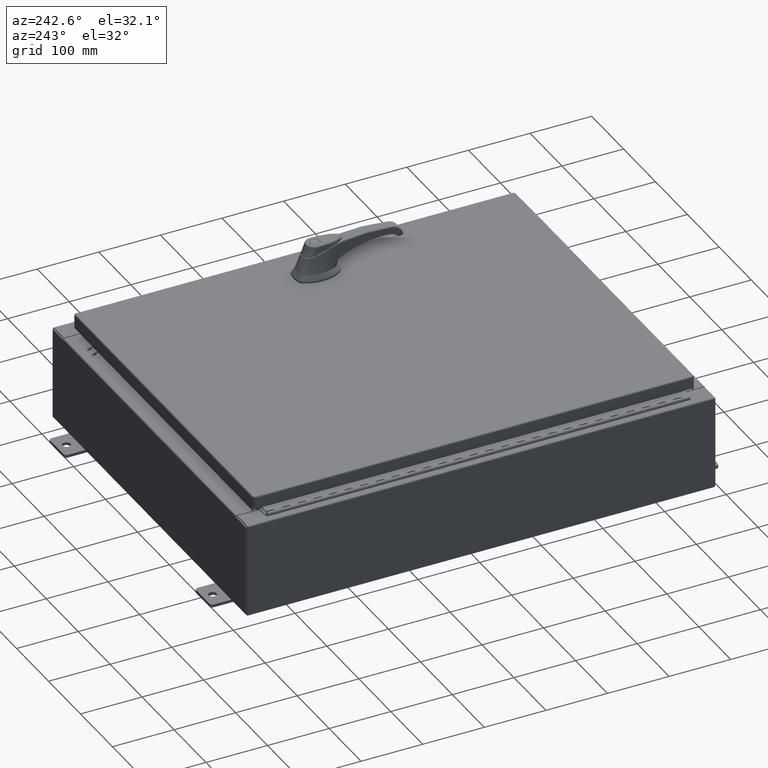
[diagram: clean part render]
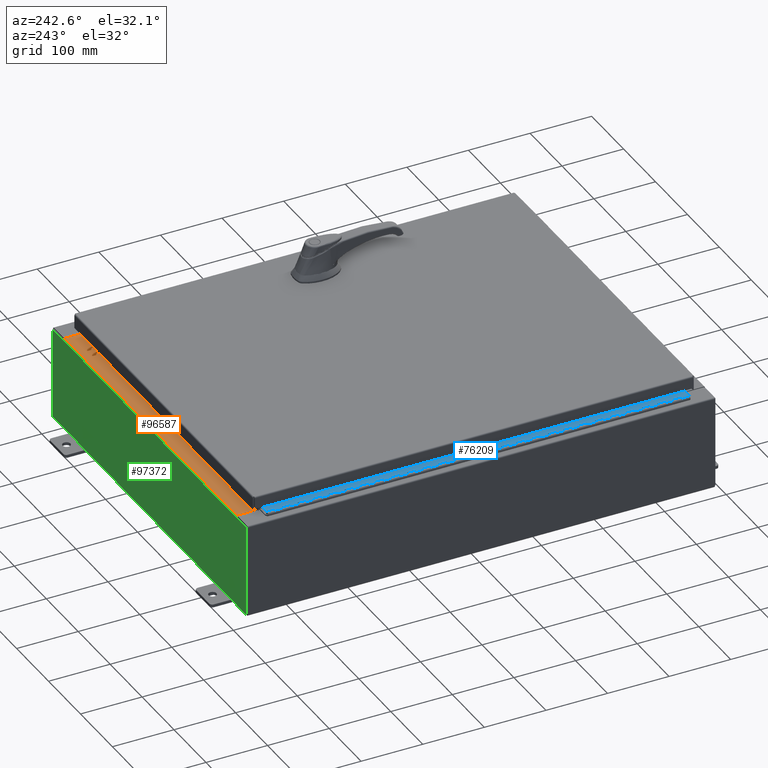
[diagram: same view with three faces highlighted in distinct colors, each labeled with its STEP entity id]
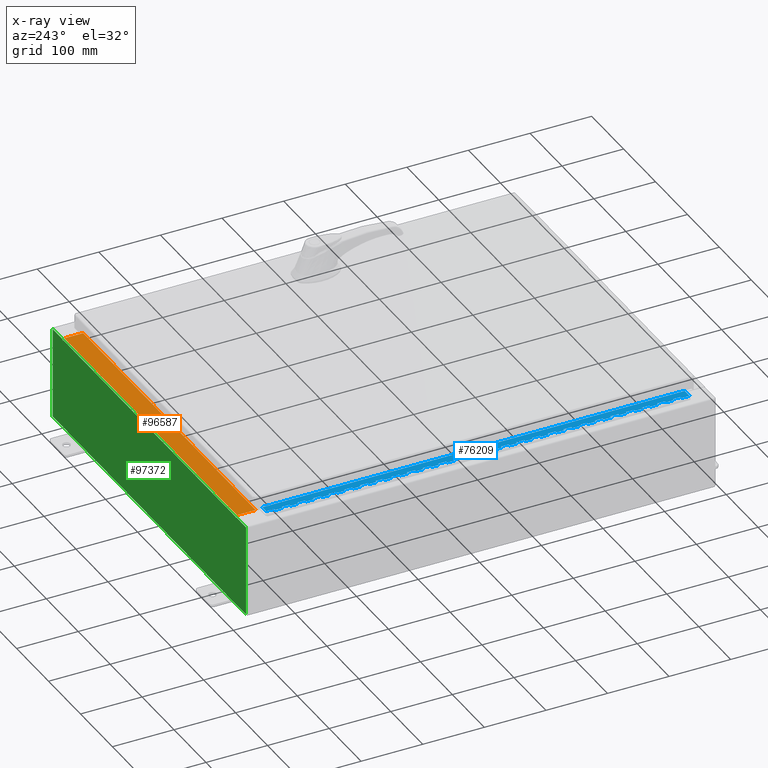
[diagram: x-ray of the same camera — body ghosted, the three highlighted faces saturated]
A machine part, auxiliary view with three faces highlighted in distinct colors.
The next image is the same camera in x-ray (body ghosted, the three faces saturated) — at least one of them is partly hidden behind the body in this view.
Their STEP definitions:

[orange] entity #96587 — the highlighted planar face has unit normal (0, 0, 1).
#5349 = EDGE_LOOP ( 'NONE', ( #117628, #98129, #110403, #78551 ) ) ;
#7588 = CARTESIAN_POINT ( 'NONE',  ( -10.63720000000000200, -0.07469999999999973900, 3.000000000000000900 ) ) ;
#13084 = CARTESIAN_POINT ( 'NONE',  ( 10.63720000000000400, -1.287299999999999900, 3.000000000000005300 ) ) ;
#13236 = DIRECTION ( 'NONE',  ( 0.0000000000000000000, 3.566381192773190000E-015, 1.000000000000000000 ) ) ;
#17933 = FACE_OUTER_BOUND ( 'NONE', #5349, .T. ) ;
#22294 = DIRECTION ( 'NONE',  ( -1.000000000000000000, 0.0000000000000000000, 0.0000000000000000000 ) ) ;
#26999 = EDGE_CURVE ( 'NONE', #70602, #75100, #102433, .T. ) ;
#35113 = VECTOR ( 'NONE', #117214, 39.37007874015748100 ) ;
#37007 = DIRECTION ( 'NONE',  ( -1.000000000000000000, 2.568202152506545800E-017, -9.159187855938968600E-032 ) ) ;
#39646 = VECTOR ( 'NONE', #109366, 39.37007874015748100 ) ;
#45378 = CARTESIAN_POINT ( 'NONE',  ( 10.63720000000000200, -1.300299999999999800, 3.000000000000005300 ) ) ;
#58891 = PLANE ( 'NONE',  #72274 ) ;
#68117 = CARTESIAN_POINT ( 'NONE',  ( 0.0000000000000000000, 1.069354855923099900E-014, 3.000000000000000900 ) ) ;
#70602 = VERTEX_POINT ( 'NONE', #113565 ) ;
#71081 = CARTESIAN_POINT ( 'NONE',  ( -2.252313287748515100E-018, -0.08770000000000000000, 3.000000000000001300 ) ) ;
#71623 = VERTEX_POINT ( 'NONE', #100958 ) ;
#72274 = AXIS2_PLACEMENT_3D ( 'NONE', #68117, #13236, #77395 ) ;
#75100 = VERTEX_POINT ( 'NONE', #102097 ) ;
#77395 = DIRECTION ( 'NONE',  ( 0.0000000000000000000, -1.000000000000000000, 3.566381192773190000E-015 ) ) ;
#77798 = CARTESIAN_POINT ( 'NONE',  ( -10.63720000000000200, -0.08770000000000000000, 3.000000000000000900 ) ) ;
#78551 = ORIENTED_EDGE ( 'NONE', *, *, #91623, .T. ) ;
#85516 = LINE ( 'NONE', #45378, #39646 ) ;
#86461 = LINE ( 'NONE', #71081, #89262 ) ;
#87528 = EDGE_CURVE ( 'NONE', #75100, #111480, #89572, .T. ) ;
#89262 = VECTOR ( 'NONE', #37007, 39.37007874015748100 ) ;
#89572 = LINE ( 'NONE', #7588, #35113 ) ;
#91623 = EDGE_CURVE ( 'NONE', #71623, #111480, #86461, .T. ) ;
#95742 = EDGE_CURVE ( 'NONE', #71623, #70602, #85516, .T. ) ;
#96587 = ADVANCED_FACE ( 'NONE', ( #17933 ), #58891, .T. ) ;
#98129 = ORIENTED_EDGE ( 'NONE', *, *, #26999, .F. ) ;
#99551 = VECTOR ( 'NONE', #22294, 39.37007874015748100 ) ;
#100958 = CARTESIAN_POINT ( 'NONE',  ( 10.63720000000000400, -0.08769999999999965300, 3.000000000000000900 ) ) ;
#102097 = CARTESIAN_POINT ( 'NONE',  ( -10.63720000000000200, -1.287299999999999200, 3.000000000000005300 ) ) ;
#102433 = LINE ( 'NONE', #13084, #99551 ) ;
#109366 = DIRECTION ( 'NONE',  ( -0.0000000000000000000, -1.000000000000000000, 3.566381192773190000E-015 ) ) ;
#110403 = ORIENTED_EDGE ( 'NONE', *, *, #95742, .F. ) ;
#111480 = VERTEX_POINT ( 'NONE', #77798 ) ;
#113565 = CARTESIAN_POINT ( 'NONE',  ( 10.63720000000000200, -1.287299999999999900, 3.000000000000005300 ) ) ;
#117214 = DIRECTION ( 'NONE',  ( -0.0000000000000000000, 1.000000000000000000, -3.566381192773190000E-015 ) ) ;
#117628 = ORIENTED_EDGE ( 'NONE', *, *, #87528, .F. ) ;

[blue] entity #76209 — the highlighted planar face has unit normal (-0, -0, 1).
#148 = VERTEX_POINT ( 'NONE', #107061 ) ;
#254 = LINE ( 'NONE', #40785, #113405 ) ;
#264 = VECTOR ( 'NONE', #104094, 39.37007874015748100 ) ;
#266 = DIRECTION ( 'NONE',  ( -3.389037039080723100E-015, -1.000000000000000000, 0.0000000000000000000 ) ) ;
#772 = VERTEX_POINT ( 'NONE', #44633 ) ;
#817 = VERTEX_POINT ( 'NONE', #67795 ) ;
#927 = CARTESIAN_POINT ( 'NONE',  ( -0.6869999999999978300, 0.6754999999999996600, -25.50000000000000400 ) ) ;
#966 = CARTESIAN_POINT ( 'NONE',  ( -0.6869999999999982800, 0.5504999999999997700, -2.500000000000000000 ) ) ;
#1003 = EDGE_CURVE ( 'NONE', #50014, #41654, #20984, .T. ) ;
#1274 = CARTESIAN_POINT ( 'NONE',  ( -0.6869999999999982800, 0.5504999999999997700, -9.500000000000000000 ) ) ;
#1713 = CARTESIAN_POINT ( 'NONE',  ( -0.6869999999999982800, 0.5504999999999997700, -20.50000000000000400 ) ) ;
#1799 = VECTOR ( 'NONE', #38890, 39.37007874015748100 ) ;
#1854 = VERTEX_POINT ( 'NONE', #61661 ) ;
#1951 = ORIENTED_EDGE ( 'NONE', *, *, #82501, .F. ) ;
#1988 = ORIENTED_EDGE ( 'NONE', *, *, #85643, .F. ) ;
#2017 = ORIENTED_EDGE ( 'NONE', *, *, #99906, .F. ) ;
#2075 = CARTESIAN_POINT ( 'NONE',  ( -0.6869999999999978300, 0.6754999999999996600, -5.500000000000000000 ) ) ;
#2169 = EDGE_CURVE ( 'NONE', #96390, #11689, #49528, .T. ) ;
#2224 = DIRECTION ( 'NONE',  ( -3.389037039080723100E-015, -1.000000000000000000, 0.0000000000000000000 ) ) ;
#2379 = CARTESIAN_POINT ( 'NONE',  ( -0.6869999999999982800, 0.5504999999999997700, -10.50000000000000000 ) ) ;
#2678 = VERTEX_POINT ( 'NONE', #966 ) ;
#2716 = CARTESIAN_POINT ( 'NONE',  ( -0.6869999999999973900, 0.8004999999999995500, -21.00000000000000000 ) ) ;
#3068 = LINE ( 'NONE', #86871, #46012 ) ;
#3304 = CARTESIAN_POINT ( 'NONE',  ( -0.6869999999999978300, 0.6754999999999996600, -27.00000000000000000 ) ) ;
#3446 = VECTOR ( 'NONE', #28234, 39.37007874015748100 ) ;
#3791 = VERTEX_POINT ( 'NONE', #97004 ) ;
#3815 = VERTEX_POINT ( 'NONE', #117011 ) ;
#3828 = ORIENTED_EDGE ( 'NONE', *, *, #94511, .F. ) ;
#3872 = VECTOR ( 'NONE', #56449, 39.37007874015748100 ) ;
#3986 = DIRECTION ( 'NONE',  ( -3.389037039080723100E-015, -1.000000000000000000, 0.0000000000000000000 ) ) ;
#4775 = EDGE_CURVE ( 'NONE', #94116, #5012, #100759, .T. ) ;
#4826 = VECTOR ( 'NONE', #68736, 39.37007874015748100 ) ;
#4855 = ORIENTED_EDGE ( 'NONE', *, *, #1003, .F. ) ;
#5007 = LINE ( 'NONE', #109207, #50885 ) ;
#5012 = VERTEX_POINT ( 'NONE', #111553 ) ;
#5056 = CARTESIAN_POINT ( 'NONE',  ( -0.6869999999999973900, 0.8004999999999995500, -20.00000000000000000 ) ) ;
#5105 = EDGE_CURVE ( 'NONE', #82993, #87698, #80798, .T. ) ;
#5126 = ORIENTED_EDGE ( 'NONE', *, *, #6818, .T. ) ;
#5134 = DIRECTION ( 'NONE',  ( 0.0000000000000000000, -0.0000000000000000000, -1.000000000000000000 ) ) ;
#5136 = CARTESIAN_POINT ( 'NONE',  ( -0.6869999999999973900, 0.8004999999999995500, -4.000000000000000000 ) ) ;
#5348 = VECTOR ( 'NONE', #73752, 39.37007874015748100 ) ;
#5679 = DIRECTION ( 'NONE',  ( -3.389037039080723100E-015, -1.000000000000000000, 0.0000000000000000000 ) ) ;
#5763 = CARTESIAN_POINT ( 'NONE',  ( -0.6869999999999978300, 0.6754999999999996600, -23.00000000000000000 ) ) ;
#5916 = VECTOR ( 'NONE', #39332, 39.37007874015748100 ) ;
#5958 = VECTOR ( 'NONE', #16301, 39.37007874015748100 ) ;
#6332 = ORIENTED_EDGE ( 'NONE', *, *, #65607, .F. ) ;
#6536 = ORIENTED_EDGE ( 'NONE', *, *, #90792, .F. ) ;
#6818 = EDGE_CURVE ( 'NONE', #16726, #11689, #16034, .T. ) ;
#7086 = ORIENTED_EDGE ( 'NONE', *, *, #102559, .T. ) ;
#7223 = VECTOR ( 'NONE', #73803, 39.37007874015748100 ) ;
#7545 = CARTESIAN_POINT ( 'NONE',  ( -0.6869999999999973900, 0.8004999999999995500, -22.00000000000000000 ) ) ;
#7747 = DIRECTION ( 'NONE',  ( 0.0000000000000000000, -0.0000000000000000000, -1.000000000000000000 ) ) ;
#7967 = VECTOR ( 'NONE', #69739, 39.37007874015748100 ) ;
#7988 = VECTOR ( 'NONE', #110678, 39.37007874015748100 ) ;
#8017 = ORIENTED_EDGE ( 'NONE', *, *, #80376, .F. ) ;
#8114 = DIRECTION ( 'NONE',  ( 0.0000000000000000000, -0.0000000000000000000, -1.000000000000000000 ) ) ;
#8266 = VERTEX_POINT ( 'NONE', #44669 ) ;
#8326 = EDGE_CURVE ( 'NONE', #57554, #18547, #29535, .T. ) ;
#8532 = LINE ( 'NONE', #47378, #30079 ) ;
#8644 = CARTESIAN_POINT ( 'NONE',  ( -0.6869999999999978300, 0.6754999999999996600, -27.00000000000000000 ) ) ;
#9076 = EDGE_CURVE ( 'NONE', #17882, #82539, #102448, .T. ) ;
#9180 = ORIENTED_EDGE ( 'NONE', *, *, #46206, .T. ) ;
#9277 = VECTOR ( 'NONE', #16755, 39.37007874015748100 ) ;
#9335 = DIRECTION ( 'NONE',  ( -3.389037039080723100E-015, -1.000000000000000000, 0.0000000000000000000 ) ) ;
#9700 = VECTOR ( 'NONE', #68343, 39.37007874015748100 ) ;
#9743 = CARTESIAN_POINT ( 'NONE',  ( -0.6869999999999982800, 0.5504999999999997700, -12.49999999999999800 ) ) ;
#9756 = LINE ( 'NONE', #47824, #28383 ) ;
#9800 = CARTESIAN_POINT ( 'NONE',  ( -0.6869999999999982800, 0.5504999999999997700, -8.000000000000000000 ) ) ;
#9828 = VECTOR ( 'NONE', #9335, 39.37007874015748100 ) ;
#9889 = CARTESIAN_POINT ( 'NONE',  ( -0.6869999999999973900, 0.8004999999999995500, -10.00000000000000000 ) ) ;
#10092 = LINE ( 'NONE', #18905, #7223 ) ;
#10173 = ORIENTED_EDGE ( 'NONE', *, *, #65559, .F. ) ;
#10193 = LINE ( 'NONE', #98984, #71783 ) ;
#10674 = DIRECTION ( 'NONE',  ( 3.389037039080723100E-015, 1.000000000000000000, -0.0000000000000000000 ) ) ;
#10764 = ORIENTED_EDGE ( 'NONE', *, *, #70769, .F. ) ;
#10967 = LINE ( 'NONE', #17155, #13833 ) ;
#11088 = CARTESIAN_POINT ( 'NONE',  ( -0.6869999999999982800, 0.5504999999999997700, -19.50000000000000000 ) ) ;
#11346 = DIRECTION ( 'NONE',  ( 0.0000000000000000000, 0.0000000000000000000, 1.000000000000000000 ) ) ;
#11438 = VECTOR ( 'NONE', #48176, 39.37007874015748100 ) ;
#11535 = VECTOR ( 'NONE', #43801, 39.37007874015748100 ) ;
#11635 = CARTESIAN_POINT ( 'NONE',  ( -0.6869999999999978300, 0.6754999999999996600, -19.00000000000000000 ) ) ;
#11673 = LINE ( 'NONE', #103288, #5916 ) ;
#11689 = VERTEX_POINT ( 'NONE', #71667 ) ;
#11691 = ORIENTED_EDGE ( 'NONE', *, *, #86032, .F. ) ;
#11763 = DIRECTION ( 'NONE',  ( 3.389037039080723100E-015, 1.000000000000000000, -0.0000000000000000000 ) ) ;
#11807 = EDGE_CURVE ( 'NONE', #37630, #75183, #74957, .T. ) ;
#11914 = DIRECTION ( 'NONE',  ( 3.389037039080723100E-015, 1.000000000000000000, -0.0000000000000000000 ) ) ;
#11925 = VERTEX_POINT ( 'NONE', #62742 ) ;
#11992 = VECTOR ( 'NONE', #32299, 39.37007874015748100 ) ;
#12363 = EDGE_CURVE ( 'NONE', #113849, #13334, #24689, .T. ) ;
#12602 = VECTOR ( 'NONE', #57494, 39.37007874015748100 ) ;
#12724 = EDGE_CURVE ( 'NONE', #30328, #91911, #47605, .T. ) ;
#12966 = LINE ( 'NONE', #14468, #83212 ) ;
#13006 = CARTESIAN_POINT ( 'NONE',  ( -0.6869999999999982800, 0.5504999999999997700, -6.499999999999999100 ) ) ;
#13067 = VERTEX_POINT ( 'NONE', #49989 ) ;
#13192 = VERTEX_POINT ( 'NONE', #53080 ) ;
#13237 = CARTESIAN_POINT ( 'NONE',  ( -0.6869999999999982800, 0.5504999999999997700, -1.499999999999999800 ) ) ;
#13320 = EDGE_CURVE ( 'NONE', #98184, #27518, #40406, .T. ) ;
#13334 = VERTEX_POINT ( 'NONE', #9800 ) ;
#13434 = VECTOR ( 'NONE', #15300, 39.37007874015748100 ) ;
#13454 = CARTESIAN_POINT ( 'NONE',  ( -0.6869999999999982800, 0.5504999999999997700, -24.50000000000000000 ) ) ;
#13574 = DIRECTION ( 'NONE',  ( -3.389037039080723100E-015, -1.000000000000000000, 0.0000000000000000000 ) ) ;
#13768 = DIRECTION ( 'NONE',  ( -3.389037039080723100E-015, -1.000000000000000000, 0.0000000000000000000 ) ) ;
#13793 = CARTESIAN_POINT ( 'NONE',  ( -0.6869999999999982800, 0.5504999999999997700, -0.5000000000000000000 ) ) ;
#13833 = VECTOR ( 'NONE', #53615, 39.37007874015748100 ) ;
#13840 = CARTESIAN_POINT ( 'NONE',  ( -0.6869999999999982800, 0.5504999999999997700, -14.49999999999999800 ) ) ;
#14112 = CARTESIAN_POINT ( 'NONE',  ( -0.6869999999999982800, 0.5504999999999997700, -6.499999999999999100 ) ) ;
#14177 = VERTEX_POINT ( 'NONE', #14441 ) ;
#14284 = VECTOR ( 'NONE', #94092, 39.37007874015748100 ) ;
#14298 = LINE ( 'NONE', #82666, #38721 ) ;
#14441 = CARTESIAN_POINT ( 'NONE',  ( -0.6869999999999978300, 0.6754999999999996600, -1.000000000000000000 ) ) ;
#14468 = CARTESIAN_POINT ( 'NONE',  ( -0.6869999999999973900, 0.8004999999999995500, -14.99999999999999800 ) ) ;
#14648 = VERTEX_POINT ( 'NONE', #86103 ) ;
#14649 = DIRECTION ( 'NONE',  ( 3.389037039080723100E-015, 1.000000000000000000, -0.0000000000000000000 ) ) ;
#14783 = ORIENTED_EDGE ( 'NONE', *, *, #113340, .F. ) ;
#15011 = LINE ( 'NONE', #89684, #9277 ) ;
#15300 = DIRECTION ( 'NONE',  ( 0.0000000000000000000, 0.0000000000000000000, 1.000000000000000000 ) ) ;
#15407 = ORIENTED_EDGE ( 'NONE', *, *, #114441, .F. ) ;
#15422 = LINE ( 'NONE', #48352, #12602 ) ;
#15526 = VECTOR ( 'NONE', #3986, 39.37007874015748100 ) ;
#15580 = VERTEX_POINT ( 'NONE', #74609 ) ;
#15629 = LINE ( 'NONE', #107562, #113034 ) ;
#15651 = LINE ( 'NONE', #98389, #83069 ) ;
#15942 = VECTOR ( 'NONE', #54262, 39.37007874015748100 ) ;
#15999 = EDGE_CURVE ( 'NONE', #39879, #87231, #41699, .T. ) ;
#16034 = LINE ( 'NONE', #60251, #31851 ) ;
#16162 = DIRECTION ( 'NONE',  ( -3.389037039080723100E-015, -1.000000000000000000, 0.0000000000000000000 ) ) ;
#16301 = DIRECTION ( 'NONE',  ( -3.389037039080723100E-015, -1.000000000000000000, 0.0000000000000000000 ) ) ;
#16374 = EDGE_CURVE ( 'NONE', #117821, #110137, #91693, .T. ) ;
#16726 = VERTEX_POINT ( 'NONE', #68709 ) ;
#16742 = CARTESIAN_POINT ( 'NONE',  ( -0.6869999999999982800, 0.5504999999999997700, -8.500000000000000000 ) ) ;
#16750 = DIRECTION ( 'NONE',  ( 3.389037039080723100E-015, 1.000000000000000000, -0.0000000000000000000 ) ) ;
#16755 = DIRECTION ( 'NONE',  ( 0.0000000000000000000, -0.0000000000000000000, -1.000000000000000000 ) ) ;
#16838 = VERTEX_POINT ( 'NONE', #79534 ) ;
#17155 = CARTESIAN_POINT ( 'NONE',  ( -0.6869999999999973900, 0.8004999999999995500, -23.99999999999999600 ) ) ;
#17425 = ORIENTED_EDGE ( 'NONE', *, *, #112536, .T. ) ;
#17478 = LINE ( 'NONE', #24476, #90596 ) ;
#17637 = ORIENTED_EDGE ( 'NONE', *, *, #43502, .F. ) ;
#17643 = VERTEX_POINT ( 'NONE', #109342 ) ;
#17679 = EDGE_CURVE ( 'NONE', #96240, #84444, #62871, .T. ) ;
#17806 = LINE ( 'NONE', #27862, #109469 ) ;
#17813 = EDGE_CURVE ( 'NONE', #43199, #82993, #78712, .T. ) ;
#17882 = VERTEX_POINT ( 'NONE', #2075 ) ;
#18156 = CARTESIAN_POINT ( 'NONE',  ( -0.6869999999999982800, 0.5504999999999997700, -23.00000000000000000 ) ) ;
#18328 = VECTOR ( 'NONE', #20284, 39.37007874015748100 ) ;
#18353 = EDGE_CURVE ( 'NONE', #5012, #67034, #92857, .T. ) ;
#18422 = LINE ( 'NONE', #51864, #40015 ) ;
#18468 = CARTESIAN_POINT ( 'NONE',  ( -0.6869999999999982800, 0.5504999999999997700, -24.99999999999999600 ) ) ;
#18547 = VERTEX_POINT ( 'NONE', #89583 ) ;
#18676 = VERTEX_POINT ( 'NONE', #19420 ) ;
#18773 = ORIENTED_EDGE ( 'NONE', *, *, #19061, .F. ) ;
#18905 = CARTESIAN_POINT ( 'NONE',  ( -0.6869999999999978300, 0.6754999999999996600, -27.00000000000000000 ) ) ;
#18981 = CARTESIAN_POINT ( 'NONE',  ( -0.6869999999999978300, 0.6754999999999996600, -24.99999999999999600 ) ) ;
#18982 = ORIENTED_EDGE ( 'NONE', *, *, #88554, .T. ) ;
#19023 = ORIENTED_EDGE ( 'NONE', *, *, #24876, .F. ) ;
#19061 = EDGE_CURVE ( 'NONE', #45514, #116763, #19648, .T. ) ;
#19169 = VERTEX_POINT ( 'NONE', #73016 ) ;
#19350 = VECTOR ( 'NONE', #89184, 39.37007874015748100 ) ;
#19420 = CARTESIAN_POINT ( 'NONE',  ( -0.6869999999999978300, 0.6754999999999996600, -21.00000000000000000 ) ) ;
#19495 = CARTESIAN_POINT ( 'NONE',  ( -0.6869999999999982800, 0.5504999999999997700, -11.99999999999999800 ) ) ;
#19648 = LINE ( 'NONE', #25387, #68436 ) ;
#19660 = VERTEX_POINT ( 'NONE', #56803 ) ;
#19747 = CARTESIAN_POINT ( 'NONE',  ( -0.6869999999999978300, 0.6754999999999996600, -11.50000000000000000 ) ) ;
#19764 = VECTOR ( 'NONE', #5134, 39.37007874015748100 ) ;
#19790 = VECTOR ( 'NONE', #110549, 39.37007874015748100 ) ;
#19997 = CARTESIAN_POINT ( 'NONE',  ( -0.6869999999999973900, 0.8004999999999995500, -6.000000000000000900 ) ) ;
#20119 = ORIENTED_EDGE ( 'NONE', *, *, #28416, .F. ) ;
#20152 = VERTEX_POINT ( 'NONE', #46673 ) ;
#20260 = DIRECTION ( 'NONE',  ( 0.0000000000000000000, -0.0000000000000000000, -1.000000000000000000 ) ) ;
#20284 = DIRECTION ( 'NONE',  ( -3.389037039080723100E-015, -1.000000000000000000, 0.0000000000000000000 ) ) ;
#20422 = DIRECTION ( 'NONE',  ( 0.0000000000000000000, 0.0000000000000000000, 1.000000000000000000 ) ) ;
#20625 = CARTESIAN_POINT ( 'NONE',  ( -0.6869999999999978300, 0.6754999999999996600, -2.999999999999999600 ) ) ;
#20984 = LINE ( 'NONE', #50895, #118285 ) ;
#21117 = VERTEX_POINT ( 'NONE', #70452 ) ;
#21297 = ORIENTED_EDGE ( 'NONE', *, *, #112174, .F. ) ;
#21340 = ORIENTED_EDGE ( 'NONE', *, *, #9076, .T. ) ;
#21367 = CARTESIAN_POINT ( 'NONE',  ( -0.6869999999999978300, 0.6754999999999996600, -10.50000000000000000 ) ) ;
#21692 = CARTESIAN_POINT ( 'NONE',  ( -0.6869999999999978300, 0.6754999999999996600, -8.500000000000000000 ) ) ;
#21792 = LINE ( 'NONE', #76988, #67646 ) ;
#21818 = VECTOR ( 'NONE', #86404, 39.37007874015748100 ) ;
#22146 = CARTESIAN_POINT ( 'NONE',  ( -0.6869999999999973900, 0.8004999999999995500, -4.500000000000000000 ) ) ;
#22209 = DIRECTION ( 'NONE',  ( 0.0000000000000000000, -0.0000000000000000000, -1.000000000000000000 ) ) ;
#22243 = CARTESIAN_POINT ( 'NONE',  ( -0.6869999999999982800, 0.5504999999999997700, -10.50000000000000000 ) ) ;
#22513 = VECTOR ( 'NONE', #65164, 39.37007874015748100 ) ;
#22557 = VERTEX_POINT ( 'NONE', #30418 ) ;
#22695 = DIRECTION ( 'NONE',  ( 0.0000000000000000000, 0.0000000000000000000, 1.000000000000000000 ) ) ;
#22889 = VECTOR ( 'NONE', #104211, 39.37007874015748100 ) ;
#22893 = LINE ( 'NONE', #38519, #111654 ) ;
#23173 = VECTOR ( 'NONE', #16750, 39.37007874015748100 ) ;
#23310 = VECTOR ( 'NONE', #20422, 39.37007874015748100 ) ;
#23694 = CARTESIAN_POINT ( 'NONE',  ( -0.6869999999999973900, 0.8004999999999995500, -24.99999999999999600 ) ) ;
#23742 = CARTESIAN_POINT ( 'NONE',  ( -0.6869999999999982800, 0.5504999999999997700, -26.50000000000000400 ) ) ;
#24314 = DIRECTION ( 'NONE',  ( 0.0000000000000000000, 0.0000000000000000000, 1.000000000000000000 ) ) ;
#24431 = VECTOR ( 'NONE', #42687, 39.37007874015748100 ) ;
#24476 = CARTESIAN_POINT ( 'NONE',  ( -0.6869999999999982800, 0.5504999999999997700, -17.50000000000000000 ) ) ;
#24582 = ORIENTED_EDGE ( 'NONE', *, *, #77461, .F. ) ;
#24592 = ORIENTED_EDGE ( 'NONE', *, *, #98775, .T. ) ;
#24617 = VERTEX_POINT ( 'NONE', #31234 ) ;
#24689 = LINE ( 'NONE', #40326, #21818 ) ;
#24876 = EDGE_CURVE ( 'NONE', #59916, #92309, #56718, .T. ) ;
#24922 = DIRECTION ( 'NONE',  ( -3.389037039080723100E-015, -1.000000000000000000, 0.0000000000000000000 ) ) ;
#24954 = VECTOR ( 'NONE', #69204, 39.37007874015748100 ) ;
#25000 = VERTEX_POINT ( 'NONE', #47509 ) ;
#25032 = DIRECTION ( 'NONE',  ( -3.389037039080723100E-015, -1.000000000000000000, 0.0000000000000000000 ) ) ;
#25067 = LINE ( 'NONE', #43300, #76771 ) ;
#25304 = ORIENTED_EDGE ( 'NONE', *, *, #93169, .F. ) ;
#25368 = LINE ( 'NONE', #73987, #22513 ) ;
#25387 = CARTESIAN_POINT ( 'NONE',  ( -0.6869999999999973900, 0.8004999999999995500, -12.49999999999999800 ) ) ;
#25633 = ORIENTED_EDGE ( 'NONE', *, *, #63200, .F. ) ;
#25932 = ORIENTED_EDGE ( 'NONE', *, *, #8326, .F. ) ;
#26420 = CARTESIAN_POINT ( 'NONE',  ( -0.6869999999999978300, 0.6754999999999996600, -27.00000000000000000 ) ) ;
#26572 = CARTESIAN_POINT ( 'NONE',  ( -0.6869999999999973900, 0.8004999999999995500, -6.499999999999999100 ) ) ;
#26651 = CARTESIAN_POINT ( 'NONE',  ( -0.6869999999999973900, 0.8004999999999995500, -23.50000000000000000 ) ) ;
#26991 = EDGE_CURVE ( 'NONE', #44998, #62221, #75318, .T. ) ;
#27061 = CARTESIAN_POINT ( 'NONE',  ( -0.6869999999999982800, 0.5504999999999997700, -25.50000000000000400 ) ) ;
#27089 = CARTESIAN_POINT ( 'NONE',  ( -0.6869999999999982800, 0.5504999999999997700, -23.99999999999999600 ) ) ;
#27181 = EDGE_CURVE ( 'NONE', #17643, #107759, #66621, .T. ) ;
#27362 = ORIENTED_EDGE ( 'NONE', *, *, #50719, .F. ) ;
#27518 = VERTEX_POINT ( 'NONE', #55821 ) ;
#27862 = CARTESIAN_POINT ( 'NONE',  ( -0.6869999999999982800, 0.5504999999999997700, -21.50000000000000400 ) ) ;
#27879 = ORIENTED_EDGE ( 'NONE', *, *, #13320, .F. ) ;
#28146 = EDGE_CURVE ( 'NONE', #109815, #14648, #54976, .T. ) ;
#28156 = LINE ( 'NONE', #99867, #49697 ) ;
#28161 = VERTEX_POINT ( 'NONE', #18981 ) ;
#28234 = DIRECTION ( 'NONE',  ( 0.0000000000000000000, -0.0000000000000000000, -1.000000000000000000 ) ) ;
#28315 = EDGE_CURVE ( 'NONE', #91750, #82094, #107909, .T. ) ;
#28383 = VECTOR ( 'NONE', #11346, 39.37007874015748100 ) ;
#28416 = EDGE_CURVE ( 'NONE', #22557, #37914, #29186, .T. ) ;
#28736 = CARTESIAN_POINT ( 'NONE',  ( -0.6869999999999973900, 0.8004999999999995500, -17.00000000000000000 ) ) ;
#29186 = LINE ( 'NONE', #70194, #13434 ) ;
#29337 = ORIENTED_EDGE ( 'NONE', *, *, #110073, .F. ) ;
#29365 = CARTESIAN_POINT ( 'NONE',  ( -0.6869999999999982800, 0.5504999999999997700, -18.50000000000000000 ) ) ;
#29535 = LINE ( 'NONE', #34993, #99681 ) ;
#29596 = VECTOR ( 'NONE', #59885, 39.37007874015748100 ) ;
#29938 = VECTOR ( 'NONE', #46968, 39.37007874015748100 ) ;
#30079 = VECTOR ( 'NONE', #111353, 39.37007874015748100 ) ;
#30290 = LINE ( 'NONE', #68072, #103298 ) ;
#30328 = VERTEX_POINT ( 'NONE', #97980 ) ;
#30367 = CARTESIAN_POINT ( 'NONE',  ( -0.6869999999999982800, 0.5504999999999997700, -7.000000000000000000 ) ) ;
#30418 = CARTESIAN_POINT ( 'NONE',  ( -0.6869999999999998300, 0.07549999999999991400, -27.00000000000000000 ) ) ;
#30443 = EDGE_CURVE ( 'NONE', #16726, #43199, #100444, .T. ) ;
#30652 = ORIENTED_EDGE ( 'NONE', *, *, #105707, .F. ) ;
#30670 = LINE ( 'NONE', #28736, #100750 ) ;
#30723 = ORIENTED_EDGE ( 'NONE', *, *, #28315, .F. ) ;
#30730 = VERTEX_POINT ( 'NONE', #86005 ) ;
#31070 = VECTOR ( 'NONE', #71514, 39.37007874015748100 ) ;
#31147 = EDGE_CURVE ( 'NONE', #37562, #92744, #84758, .T. ) ;
#31234 = CARTESIAN_POINT ( 'NONE',  ( -0.6869999999999982800, 0.5504999999999997700, -0.5000000000000000000 ) ) ;
#31247 = LINE ( 'NONE', #13454, #9700 ) ;
#31372 = CARTESIAN_POINT ( 'NONE',  ( -0.6869999999999978300, 0.6754999999999996600, -26.00000000000000000 ) ) ;
#31594 = EDGE_CURVE ( 'NONE', #76300, #41654, #10092, .T. ) ;
#31851 = VECTOR ( 'NONE', #24314, 39.37007874015748100 ) ;
#31929 = ORIENTED_EDGE ( 'NONE', *, *, #2169, .F. ) ;
#32299 = DIRECTION ( 'NONE',  ( 0.0000000000000000000, -0.0000000000000000000, -1.000000000000000000 ) ) ;
#32647 = ORIENTED_EDGE ( 'NONE', *, *, #83550, .T. ) ;
#33346 = EDGE_CURVE ( 'NONE', #96507, #148, #30290, .T. ) ;
#33714 = DIRECTION ( 'NONE',  ( 0.0000000000000000000, -0.0000000000000000000, -1.000000000000000000 ) ) ;
#33746 = LINE ( 'NONE', #68491, #82507 ) ;
#33828 = CARTESIAN_POINT ( 'NONE',  ( -0.6869999999999973900, 0.8004999999999995500, -2.000000000000000000 ) ) ;
#34204 = LINE ( 'NONE', #62609, #104360 ) ;
#34306 = VERTEX_POINT ( 'NONE', #98365 ) ;
#34375 = ORIENTED_EDGE ( 'NONE', *, *, #35004, .T. ) ;
#34472 = ORIENTED_EDGE ( 'NONE', *, *, #11807, .F. ) ;
#34586 = CARTESIAN_POINT ( 'NONE',  ( -0.6869999999999982800, 0.5504999999999997700, -23.50000000000000000 ) ) ;
#34820 = CARTESIAN_POINT ( 'NONE',  ( -0.6869999999999978300, 0.6754999999999996600, -17.99999999999999600 ) ) ;
#34933 = EDGE_CURVE ( 'NONE', #75183, #58307, #14298, .T. ) ;
#34956 = VERTEX_POINT ( 'NONE', #83063 ) ;
#34982 = EDGE_CURVE ( 'NONE', #72242, #113849, #105954, .T. ) ;
#34993 = CARTESIAN_POINT ( 'NONE',  ( -0.6869999999999982800, 0.5504999999999997700, -13.50000000000000000 ) ) ;
#35004 = EDGE_CURVE ( 'NONE', #17643, #25000, #8532, .T. ) ;
#35230 = VERTEX_POINT ( 'NONE', #21692 ) ;
#35235 = LINE ( 'NONE', #96939, #7967 ) ;
#35597 = EDGE_CURVE ( 'NONE', #96507, #30730, #117263, .T. ) ;
#35671 = VECTOR ( 'NONE', #64163, 39.37007874015748100 ) ;
#35714 = DIRECTION ( 'NONE',  ( 3.389037039080723100E-015, 1.000000000000000000, -0.0000000000000000000 ) ) ;
#36040 = VERTEX_POINT ( 'NONE', #21367 ) ;
#36687 = ORIENTED_EDGE ( 'NONE', *, *, #33346, .F. ) ;
#36746 = CARTESIAN_POINT ( 'NONE',  ( -0.6869999999999973900, 0.8004999999999995500, -26.50000000000000400 ) ) ;
#36936 = VERTEX_POINT ( 'NONE', #107701 ) ;
#36965 = DIRECTION ( 'NONE',  ( 3.389037039080723100E-015, 1.000000000000000000, -0.0000000000000000000 ) ) ;
#37092 = DIRECTION ( 'NONE',  ( 0.0000000000000000000, -0.0000000000000000000, -1.000000000000000000 ) ) ;
#37326 = CARTESIAN_POINT ( 'NONE',  ( -0.6869999999999973900, 0.8004999999999995500, -5.500000000000000000 ) ) ;
#37542 = CARTESIAN_POINT ( 'NONE',  ( -0.6869999999999982800, 0.5504999999999997700, -10.00000000000000000 ) ) ;
#37562 = VERTEX_POINT ( 'NONE', #66702 ) ;
#37630 = VERTEX_POINT ( 'NONE', #22243 ) ;
#37672 = CARTESIAN_POINT ( 'NONE',  ( -0.6869999999999978300, 0.6754999999999996600, -26.50000000000000400 ) ) ;
#37914 = VERTEX_POINT ( 'NONE', #55738 ) ;
#37999 = DIRECTION ( 'NONE',  ( 3.389037039080723100E-015, 1.000000000000000000, -0.0000000000000000000 ) ) ;
#38024 = LINE ( 'NONE', #39208, #59470 ) ;
#38395 = CARTESIAN_POINT ( 'NONE',  ( -0.6869999999999973900, 0.8004999999999995500, -13.50000000000000000 ) ) ;
#38519 = CARTESIAN_POINT ( 'NONE',  ( -0.6869999999999973900, 0.8004999999999995500, -7.000000000000000000 ) ) ;
#38579 = CARTESIAN_POINT ( 'NONE',  ( -0.6869999999999982800, 0.5504999999999997700, -4.000000000000000000 ) ) ;
#38598 = LINE ( 'NONE', #115286, #105835 ) ;
#38721 = VECTOR ( 'NONE', #36965, 39.37007874015748100 ) ;
#38800 = ORIENTED_EDGE ( 'NONE', *, *, #5105, .F. ) ;
#38890 = DIRECTION ( 'NONE',  ( 0.0000000000000000000, -0.0000000000000000000, -1.000000000000000000 ) ) ;
#38927 = DIRECTION ( 'NONE',  ( -3.389037039080723100E-015, -1.000000000000000000, 0.0000000000000000000 ) ) ;
#38965 = CARTESIAN_POINT ( 'NONE',  ( -0.6869999999999973900, 0.8004999999999995500, -8.500000000000000000 ) ) ;
#39208 = CARTESIAN_POINT ( 'NONE',  ( -0.6869999999999978300, 0.6754999999999996600, -27.00000000000000000 ) ) ;
#39332 = DIRECTION ( 'NONE',  ( 3.389037039080723100E-015, 1.000000000000000000, -0.0000000000000000000 ) ) ;
#39443 = CARTESIAN_POINT ( 'NONE',  ( -0.6869999999999978300, 0.6754999999999996600, -21.50000000000000400 ) ) ;
#39759 = DIRECTION ( 'NONE',  ( -3.389037039080723100E-015, -1.000000000000000000, 0.0000000000000000000 ) ) ;
#39809 = EDGE_CURVE ( 'NONE', #13192, #36936, #96815, .T. ) ;
#39879 = VERTEX_POINT ( 'NONE', #107825 ) ;
#39904 = CARTESIAN_POINT ( 'NONE',  ( -0.6869999999999982800, 0.5504999999999997700, -11.50000000000000000 ) ) ;
#39990 = LINE ( 'NONE', #50048, #15526 ) ;
#40015 = VECTOR ( 'NONE', #61063, 39.37007874015748100 ) ;
#40058 = EDGE_CURVE ( 'NONE', #117821, #67455, #60982, .T. ) ;
#40163 = VERTEX_POINT ( 'NONE', #927 ) ;
#40326 = CARTESIAN_POINT ( 'NONE',  ( -0.6869999999999982800, 0.5504999999999997700, -7.499999999999999100 ) ) ;
#40392 = ORIENTED_EDGE ( 'NONE', *, *, #99480, .F. ) ;
#40406 = LINE ( 'NONE', #26651, #15942 ) ;
#40762 = ORIENTED_EDGE ( 'NONE', *, *, #34933, .F. ) ;
#40785 = CARTESIAN_POINT ( 'NONE',  ( -0.6869999999999973900, 0.8004999999999995500, -11.50000000000000000 ) ) ;
#40870 = CARTESIAN_POINT ( 'NONE',  ( -0.6869999999999978300, 0.6754999999999996600, -7.000000000000000000 ) ) ;
#41193 = ORIENTED_EDGE ( 'NONE', *, *, #69871, .F. ) ;
#41522 = DIRECTION ( 'NONE',  ( 1.000000000000000000, -3.369016658928398200E-015, 0.0000000000000000000 ) ) ;
#41629 = CARTESIAN_POINT ( 'NONE',  ( -0.6869999999999982800, 0.5504999999999997700, -3.500000000000000000 ) ) ;
#41654 = VERTEX_POINT ( 'NONE', #11635 ) ;
#41699 = LINE ( 'NONE', #52072, #87561 ) ;
#42112 = LINE ( 'NONE', #90085, #69309 ) ;
#42144 = ORIENTED_EDGE ( 'NONE', *, *, #18353, .F. ) ;
#42687 = DIRECTION ( 'NONE',  ( 3.389037039080723100E-015, 1.000000000000000000, -0.0000000000000000000 ) ) ;
#42864 = VERTEX_POINT ( 'NONE', #93787 ) ;
#42872 = CARTESIAN_POINT ( 'NONE',  ( -0.6869999999999982800, 0.5504999999999997700, -16.50000000000000000 ) ) ;
#42896 = VECTOR ( 'NONE', #86142, 39.37007874015748100 ) ;
#43045 = LINE ( 'NONE', #57101, #113156 ) ;
#43176 = CARTESIAN_POINT ( 'NONE',  ( -0.6869999999999982800, 0.5504999999999997700, -24.50000000000000000 ) ) ;
#43199 = VERTEX_POINT ( 'NONE', #80969 ) ;
#43300 = CARTESIAN_POINT ( 'NONE',  ( -0.6869999999999982800, 0.5504999999999997700, -12.49999999999999800 ) ) ;
#43465 = ORIENTED_EDGE ( 'NONE', *, *, #101731, .T. ) ;
#43502 = EDGE_CURVE ( 'NONE', #92744, #49665, #91541, .T. ) ;
#43687 = VERTEX_POINT ( 'NONE', #117108 ) ;
#43801 = DIRECTION ( 'NONE',  ( 0.0000000000000000000, -0.0000000000000000000, -1.000000000000000000 ) ) ;
#43900 = CARTESIAN_POINT ( 'NONE',  ( -0.6869999999999982800, 0.5504999999999997700, -6.000000000000000900 ) ) ;
#44201 = LINE ( 'NONE', #64564, #19790 ) ;
#44633 = CARTESIAN_POINT ( 'NONE',  ( -0.6869999999999978300, 0.6754999999999996600, -2.500000000000000000 ) ) ;
#44669 = CARTESIAN_POINT ( 'NONE',  ( -0.6869999999999978300, 0.6754999999999996600, -20.50000000000000400 ) ) ;
#44715 = EDGE_CURVE ( 'NONE', #35230, #101277, #9756, .T. ) ;
#44897 = CARTESIAN_POINT ( 'NONE',  ( -0.6869999999999978300, 0.6754999999999996600, -5.000000000000000000 ) ) ;
#44995 = CARTESIAN_POINT ( 'NONE',  ( -0.6869999999999982800, 0.5504999999999997700, -22.50000000000000000 ) ) ;
#44998 = VERTEX_POINT ( 'NONE', #37672 ) ;
#45022 = CARTESIAN_POINT ( 'NONE',  ( -0.6869999999999973900, 0.8004999999999995500, -14.49999999999999800 ) ) ;
#45314 = EDGE_CURVE ( 'NONE', #96240, #80813, #109877, .T. ) ;
#45317 = LINE ( 'NONE', #73150, #115437 ) ;
#45514 = VERTEX_POINT ( 'NONE', #95406 ) ;
#45606 = DIRECTION ( 'NONE',  ( 0.0000000000000000000, 0.0000000000000000000, 1.000000000000000000 ) ) ;
#45745 = ORIENTED_EDGE ( 'NONE', *, *, #77878, .F. ) ;
#45864 = ORIENTED_EDGE ( 'NONE', *, *, #12363, .F. ) ;
#46012 = VECTOR ( 'NONE', #22695, 39.37007874015748100 ) ;
#46206 = EDGE_CURVE ( 'NONE', #40163, #28161, #82669, .T. ) ;
#46294 = EDGE_CURVE ( 'NONE', #42864, #55441, #28156, .T. ) ;
#46673 = CARTESIAN_POINT ( 'NONE',  ( -0.6869999999999982800, 0.5504999999999997700, -2.999999999999999600 ) ) ;
#46933 = EDGE_CURVE ( 'NONE', #39879, #24617, #112551, .T. ) ;
#46968 = DIRECTION ( 'NONE',  ( 0.0000000000000000000, -0.0000000000000000000, -1.000000000000000000 ) ) ;
#47161 = ORIENTED_EDGE ( 'NONE', *, *, #44715, .T. ) ;
#47235 = ORIENTED_EDGE ( 'NONE', *, *, #71390, .F. ) ;
#47300 = LINE ( 'NONE', #51848, #93093 ) ;
#47378 = CARTESIAN_POINT ( 'NONE',  ( -0.6869999999999978300, 0.6754999999999996600, -27.00000000000000000 ) ) ;
#47409 = CARTESIAN_POINT ( 'NONE',  ( -0.6869999999999978300, 0.6754999999999996600, -27.00000000000000000 ) ) ;
#47509 = CARTESIAN_POINT ( 'NONE',  ( -0.6869999999999978300, 0.6754999999999996600, -14.99999999999999800 ) ) ;
#47605 = LINE ( 'NONE', #26572, #96266 ) ;
#47661 = CARTESIAN_POINT ( 'NONE',  ( -0.6869999999999978300, 0.6754999999999996600, -14.49999999999999800 ) ) ;
#47824 = CARTESIAN_POINT ( 'NONE',  ( -0.6869999999999978300, 0.6754999999999996600, -27.00000000000000000 ) ) ;
#48176 = DIRECTION ( 'NONE',  ( -3.389037039080723100E-015, -1.000000000000000000, 0.0000000000000000000 ) ) ;
#48352 = CARTESIAN_POINT ( 'NONE',  ( -0.6869999999999973900, 0.8004999999999995500, -1.000000000000000000 ) ) ;
#48397 = DIRECTION ( 'NONE',  ( 0.0000000000000000000, 0.0000000000000000000, 1.000000000000000000 ) ) ;
#48469 = VERTEX_POINT ( 'NONE', #61542 ) ;
#48745 = ORIENTED_EDGE ( 'NONE', *, *, #102915, .F. ) ;
#48983 = DIRECTION ( 'NONE',  ( 0.0000000000000000000, 0.0000000000000000000, 1.000000000000000000 ) ) ;
#49127 = DIRECTION ( 'NONE',  ( 0.0000000000000000000, -0.0000000000000000000, -1.000000000000000000 ) ) ;
#49324 = CARTESIAN_POINT ( 'NONE',  ( -0.6869999999999982800, 0.5504999999999997700, -20.50000000000000400 ) ) ;
#49381 = LINE ( 'NONE', #5136, #24954 ) ;
#49528 = LINE ( 'NONE', #66678, #19350 ) ;
#49665 = VERTEX_POINT ( 'NONE', #5763 ) ;
#49697 = VECTOR ( 'NONE', #90705, 39.37007874015748100 ) ;
#49744 = LINE ( 'NONE', #19997, #3872 ) ;
#49914 = CARTESIAN_POINT ( 'NONE',  ( -0.6870000000000022800, -0.6245000000000003900, -27.00000000000000000 ) ) ;
#49989 = CARTESIAN_POINT ( 'NONE',  ( -0.6869999999999982800, 0.5504999999999997700, -1.000000000000000000 ) ) ;
#50014 = VERTEX_POINT ( 'NONE', #110086 ) ;
#50048 = CARTESIAN_POINT ( 'NONE',  ( -0.6869999999999973900, 0.8004999999999995500, -1.499999999999999800 ) ) ;
#50126 = LINE ( 'NONE', #8644, #95908 ) ;
#50145 = ORIENTED_EDGE ( 'NONE', *, *, #35597, .T. ) ;
#50719 = EDGE_CURVE ( 'NONE', #44998, #102330, #58378, .T. ) ;
#50810 = EDGE_CURVE ( 'NONE', #67127, #63969, #25368, .T. ) ;
#50885 = VECTOR ( 'NONE', #45606, 39.37007874015748100 ) ;
#50895 = CARTESIAN_POINT ( 'NONE',  ( -0.6869999999999973900, 0.8004999999999995500, -19.00000000000000000 ) ) ;
#51134 = LINE ( 'NONE', #109097, #99734 ) ;
#51176 = CARTESIAN_POINT ( 'NONE',  ( -0.6869999999999973900, 0.8004999999999995500, -14.00000000000000000 ) ) ;
#51518 = CARTESIAN_POINT ( 'NONE',  ( -0.6869999999999973900, 0.8004999999999995500, -15.50000000000000000 ) ) ;
#51848 = CARTESIAN_POINT ( 'NONE',  ( -0.6869999999999973900, 0.8004999999999995500, -17.99999999999999600 ) ) ;
#51859 = VECTOR ( 'NONE', #62555, 39.37007874015748100 ) ;
#51864 = CARTESIAN_POINT ( 'NONE',  ( -0.6869999999999982800, 0.5504999999999997700, -4.500000000000000000 ) ) ;
#52072 = CARTESIAN_POINT ( 'NONE',  ( -0.6869999999999978300, 0.6754999999999996600, -27.00000000000000000 ) ) ;
#52144 = VECTOR ( 'NONE', #13768, 39.37007874015748100 ) ;
#52890 = CARTESIAN_POINT ( 'NONE',  ( -0.6869999999999978300, 0.6754999999999996600, -11.00000000000000000 ) ) ;
#53007 = ORIENTED_EDGE ( 'NONE', *, *, #81118, .T. ) ;
#53080 = CARTESIAN_POINT ( 'NONE',  ( -0.6869999999999982800, 0.5504999999999997700, -20.00000000000000000 ) ) ;
#53608 = LINE ( 'NONE', #75390, #78074 ) ;
#53615 = DIRECTION ( 'NONE',  ( 3.389037039080723100E-015, 1.000000000000000000, -0.0000000000000000000 ) ) ;
#53900 = ORIENTED_EDGE ( 'NONE', *, *, #17813, .F. ) ;
#53929 = LINE ( 'NONE', #69101, #29596 ) ;
#54045 = ORIENTED_EDGE ( 'NONE', *, *, #103364, .F. ) ;
#54057 = DIRECTION ( 'NONE',  ( 0.0000000000000000000, 0.0000000000000000000, 1.000000000000000000 ) ) ;
#54149 = ORIENTED_EDGE ( 'NONE', *, *, #104605, .T. ) ;
#54192 = ORIENTED_EDGE ( 'NONE', *, *, #61808, .F. ) ;
#54262 = DIRECTION ( 'NONE',  ( -3.389037039080723100E-015, -1.000000000000000000, 0.0000000000000000000 ) ) ;
#54495 = VECTOR ( 'NONE', #93416, 39.37007874015748100 ) ;
#54713 = CARTESIAN_POINT ( 'NONE',  ( -0.6869999999999978300, 0.6754999999999996600, -6.000000000000000900 ) ) ;
#54929 = CARTESIAN_POINT ( 'NONE',  ( -0.6869999999999978300, 0.6754999999999996600, -27.00000000000000000 ) ) ;
#54976 = LINE ( 'NONE', #83142, #3446 ) ;
#55441 = VERTEX_POINT ( 'NONE', #95359 ) ;
#55464 = VERTEX_POINT ( 'NONE', #113699 ) ;
#55589 = VERTEX_POINT ( 'NONE', #106108 ) ;
#55738 = CARTESIAN_POINT ( 'NONE',  ( -0.6869999999999998300, 0.07549999999999991400, 0.0000000000000000000 ) ) ;
#55821 = CARTESIAN_POINT ( 'NONE',  ( -0.6869999999999982800, 0.5504999999999997700, -23.50000000000000000 ) ) ;
#55823 = CARTESIAN_POINT ( 'NONE',  ( -0.6869999999999982800, 0.5504999999999997700, -21.50000000000000400 ) ) ;
#55873 = FACE_OUTER_BOUND ( 'NONE', #91808, .T. ) ;
#55990 = VERTEX_POINT ( 'NONE', #66422 ) ;
#56036 = ORIENTED_EDGE ( 'NONE', *, *, #39809, .F. ) ;
#56150 = CARTESIAN_POINT ( 'NONE',  ( -0.6869999999999973900, 0.8004999999999995500, -7.499999999999999100 ) ) ;
#56449 = DIRECTION ( 'NONE',  ( 3.389037039080723100E-015, 1.000000000000000000, -0.0000000000000000000 ) ) ;
#56718 = LINE ( 'NONE', #73937, #7988 ) ;
#56803 = CARTESIAN_POINT ( 'NONE',  ( -0.6869999999999978300, 0.6754999999999996600, -13.50000000000000000 ) ) ;
#56835 = CARTESIAN_POINT ( 'NONE',  ( -0.6869999999999978300, 0.6754999999999996600, -18.50000000000000000 ) ) ;
#56973 = LINE ( 'NONE', #38395, #18328 ) ;
#57101 = CARTESIAN_POINT ( 'NONE',  ( -0.6869999999999973900, 0.8004999999999995500, -24.50000000000000000 ) ) ;
#57130 = VERTEX_POINT ( 'NONE', #65078 ) ;
#57308 = ORIENTED_EDGE ( 'NONE', *, *, #76313, .F. ) ;
#57442 = EDGE_CURVE ( 'NONE', #91911, #113130, #96083, .T. ) ;
#57494 = DIRECTION ( 'NONE',  ( 3.389037039080723100E-015, 1.000000000000000000, -0.0000000000000000000 ) ) ;
#57554 = VERTEX_POINT ( 'NONE', #78333 ) ;
#57673 = EDGE_CURVE ( 'NONE', #27518, #86753, #103189, .T. ) ;
#57816 = VERTEX_POINT ( 'NONE', #18468 ) ;
#58229 = DIRECTION ( 'NONE',  ( -3.389037039080723100E-015, -1.000000000000000000, 0.0000000000000000000 ) ) ;
#58256 = ORIENTED_EDGE ( 'NONE', *, *, #92044, .F. ) ;
#58307 = VERTEX_POINT ( 'NONE', #52890 ) ;
#58378 = LINE ( 'NONE', #36746, #77071 ) ;
#59051 = EDGE_CURVE ( 'NONE', #91750, #18676, #15651, .T. ) ;
#59315 = ORIENTED_EDGE ( 'NONE', *, *, #31594, .T. ) ;
#59470 = VECTOR ( 'NONE', #48397, 39.37007874015748100 ) ;
#59588 = VERTEX_POINT ( 'NONE', #27061 ) ;
#59869 = VERTEX_POINT ( 'NONE', #103447 ) ;
#59885 = DIRECTION ( 'NONE',  ( -3.389037039080723100E-015, -1.000000000000000000, 0.0000000000000000000 ) ) ;
#59908 = DIRECTION ( 'NONE',  ( 3.389037039080723100E-015, 1.000000000000000000, -0.0000000000000000000 ) ) ;
#59916 = VERTEX_POINT ( 'NONE', #39904 ) ;
#59954 = ORIENTED_EDGE ( 'NONE', *, *, #108297, .F. ) ;
#60180 = EDGE_CURVE ( 'NONE', #2678, #20152, #34204, .T. ) ;
#60251 = CARTESIAN_POINT ( 'NONE',  ( -0.6869999999999978300, 0.6754999999999996600, -27.00000000000000000 ) ) ;
#60261 = CARTESIAN_POINT ( 'NONE',  ( -0.6869999999999978300, 0.6754999999999996600, -19.50000000000000000 ) ) ;
#60410 = EDGE_CURVE ( 'NONE', #15580, #11925, #44201, .T. ) ;
#60678 = EDGE_CURVE ( 'NONE', #55589, #14177, #84366, .T. ) ;
#60820 = CARTESIAN_POINT ( 'NONE',  ( -0.6869999999999982800, 0.5504999999999997700, -4.500000000000000000 ) ) ;
#60982 = LINE ( 'NONE', #45022, #79675 ) ;
#61063 = DIRECTION ( 'NONE',  ( 0.0000000000000000000, -0.0000000000000000000, -1.000000000000000000 ) ) ;
#61113 = EDGE_CURVE ( 'NONE', #3791, #13192, #112835, .T. ) ;
#61167 = LINE ( 'NONE', #62961, #79861 ) ;
#61197 = EDGE_CURVE ( 'NONE', #13067, #14177, #15422, .T. ) ;
#61542 = CARTESIAN_POINT ( 'NONE',  ( -0.6869999999999978300, 0.6754999999999996600, -4.000000000000000000 ) ) ;
#61578 = EDGE_CURVE ( 'NONE', #88635, #57130, #18422, .T. ) ;
#61661 = CARTESIAN_POINT ( 'NONE',  ( -0.6869999999999982800, 0.5504999999999997700, -27.00000000000000000 ) ) ;
#61784 = ORIENTED_EDGE ( 'NONE', *, *, #80420, .T. ) ;
#61808 = EDGE_CURVE ( 'NONE', #8266, #101700, #104381, .T. ) ;
#61991 = DIRECTION ( 'NONE',  ( 3.389037039080723100E-015, 1.000000000000000000, -0.0000000000000000000 ) ) ;
#62006 = DIRECTION ( 'NONE',  ( 0.0000000000000000000, 0.0000000000000000000, 1.000000000000000000 ) ) ;
#62107 = LINE ( 'NONE', #71655, #110732 ) ;
#62221 = VERTEX_POINT ( 'NONE', #31372 ) ;
#62555 = DIRECTION ( 'NONE',  ( 3.389037039080723100E-015, 1.000000000000000000, -0.0000000000000000000 ) ) ;
#62609 = CARTESIAN_POINT ( 'NONE',  ( -0.6869999999999982800, 0.5504999999999997700, -2.500000000000000000 ) ) ;
#62742 = CARTESIAN_POINT ( 'NONE',  ( -0.6869999999999978300, 0.6754999999999996600, -16.00000000000000000 ) ) ;
#62828 = ORIENTED_EDGE ( 'NONE', *, *, #12724, .F. ) ;
#62853 = EDGE_CURVE ( 'NONE', #20152, #110794, #98496, .T. ) ;
#62871 = LINE ( 'NONE', #54929, #35671 ) ;
#62961 = CARTESIAN_POINT ( 'NONE',  ( -0.6869999999999982800, 0.5504999999999997700, -8.500000000000000000 ) ) ;
#62974 = LINE ( 'NONE', #84973, #14284 ) ;
#63200 = EDGE_CURVE ( 'NONE', #116105, #70229, #113369, .T. ) ;
#63203 = DIRECTION ( 'NONE',  ( 0.0000000000000000000, -0.0000000000000000000, -1.000000000000000000 ) ) ;
#63516 = DIRECTION ( 'NONE',  ( -3.389037039080723100E-015, -1.000000000000000000, 0.0000000000000000000 ) ) ;
#63969 = VERTEX_POINT ( 'NONE', #43900 ) ;
#64163 = DIRECTION ( 'NONE',  ( 0.0000000000000000000, 0.0000000000000000000, 1.000000000000000000 ) ) ;
#64192 = CARTESIAN_POINT ( 'NONE',  ( -0.6869999999999973900, 0.8004999999999995500, -20.50000000000000400 ) ) ;
#64301 = ORIENTED_EDGE ( 'NONE', *, *, #82301, .F. ) ;
#64523 = ORIENTED_EDGE ( 'NONE', *, *, #40058, .F. ) ;
#64564 = CARTESIAN_POINT ( 'NONE',  ( -0.6869999999999978300, 0.6754999999999996600, -27.00000000000000000 ) ) ;
#64595 = VECTOR ( 'NONE', #87839, 39.37007874015748100 ) ;
#64902 = VECTOR ( 'NONE', #11763, 39.37007874015748100 ) ;
#65078 = CARTESIAN_POINT ( 'NONE',  ( -0.6869999999999982800, 0.5504999999999997700, -5.000000000000000000 ) ) ;
#65164 = DIRECTION ( 'NONE',  ( 0.0000000000000000000, -0.0000000000000000000, -1.000000000000000000 ) ) ;
#65559 = EDGE_CURVE ( 'NONE', #113130, #118077, #22893, .T. ) ;
#65607 = EDGE_CURVE ( 'NONE', #36040, #37630, #62974, .T. ) ;
#65663 = ORIENTED_EDGE ( 'NONE', *, *, #45314, .F. ) ;
#66109 = EDGE_CURVE ( 'NONE', #55990, #11925, #15629, .T. ) ;
#66422 = CARTESIAN_POINT ( 'NONE',  ( -0.6869999999999982800, 0.5504999999999997700, -16.00000000000000000 ) ) ;
#66603 = CARTESIAN_POINT ( 'NONE',  ( -0.6869999999999978300, 0.6754999999999996600, -3.500000000000000000 ) ) ;
#66621 = LINE ( 'NONE', #51518, #82419 ) ;
#66629 = LINE ( 'NONE', #42872, #115247 ) ;
#66678 = CARTESIAN_POINT ( 'NONE',  ( -0.6869999999999973900, 0.8004999999999995500, -9.000000000000000000 ) ) ;
#66702 = CARTESIAN_POINT ( 'NONE',  ( -0.6869999999999982800, 0.5504999999999997700, -22.50000000000000000 ) ) ;
#66998 = VECTOR ( 'NONE', #13574, 39.37007874015748100 ) ;
#67034 = VERTEX_POINT ( 'NONE', #38579 ) ;
#67102 = EDGE_CURVE ( 'NONE', #35230, #99693, #87479, .T. ) ;
#67127 = VERTEX_POINT ( 'NONE', #75835 ) ;
#67455 = VERTEX_POINT ( 'NONE', #96904 ) ;
#67547 = CARTESIAN_POINT ( 'NONE',  ( -0.6869999999999973900, 0.8004999999999995500, -3.500000000000000000 ) ) ;
#67646 = VECTOR ( 'NONE', #86195, 39.37007874015748100 ) ;
#67795 = CARTESIAN_POINT ( 'NONE',  ( -0.6869999999999978300, 0.6754999999999996600, -23.99999999999999600 ) ) ;
#67956 = DIRECTION ( 'NONE',  ( 0.0000000000000000000, 0.0000000000000000000, 1.000000000000000000 ) ) ;
#68072 = CARTESIAN_POINT ( 'NONE',  ( -0.6869999999999973900, 0.8004999999999995500, -17.50000000000000000 ) ) ;
#68343 = DIRECTION ( 'NONE',  ( 0.0000000000000000000, -0.0000000000000000000, -1.000000000000000000 ) ) ;
#68434 = CARTESIAN_POINT ( 'NONE',  ( -0.6869999999999978300, 0.6754999999999996600, -12.99999999999999800 ) ) ;
#68436 = VECTOR ( 'NONE', #16162, 39.37007874015748100 ) ;
#68491 = CARTESIAN_POINT ( 'NONE',  ( -0.6869999999999978300, 0.6754999999999996600, -27.00000000000000000 ) ) ;
#68709 = CARTESIAN_POINT ( 'NONE',  ( -0.6869999999999978300, 0.6754999999999996600, -9.500000000000000000 ) ) ;
#68736 = DIRECTION ( 'NONE',  ( 3.389037039080723100E-015, 1.000000000000000000, -0.0000000000000000000 ) ) ;
#68895 = VECTOR ( 'NONE', #22209, 39.37007874015748100 ) ;
#69101 = CARTESIAN_POINT ( 'NONE',  ( -0.6869999999999973900, 0.8004999999999995500, -25.50000000000000400 ) ) ;
#69204 = DIRECTION ( 'NONE',  ( 3.389037039080723100E-015, 1.000000000000000000, -0.0000000000000000000 ) ) ;
#69309 = VECTOR ( 'NONE', #63203, 39.37007874015748100 ) ;
#69336 = VERTEX_POINT ( 'NONE', #74785 ) ;
#69632 = EDGE_CURVE ( 'NONE', #86649, #57816, #31247, .T. ) ;
#69739 = DIRECTION ( 'NONE',  ( 0.0000000000000000000, 0.0000000000000000000, 1.000000000000000000 ) ) ;
#69871 = EDGE_CURVE ( 'NONE', #116763, #116105, #25067, .T. ) ;
#70194 = CARTESIAN_POINT ( 'NONE',  ( -0.6869999999999998300, 0.07549999999999991400, -27.00000000000000000 ) ) ;
#70229 = VERTEX_POINT ( 'NONE', #68434 ) ;
#70240 = ORIENTED_EDGE ( 'NONE', *, *, #95491, .F. ) ;
#70452 = CARTESIAN_POINT ( 'NONE',  ( -0.6869999999999982800, 0.5504999999999997700, -17.00000000000000000 ) ) ;
#70769 = EDGE_CURVE ( 'NONE', #67034, #48469, #49381, .T. ) ;
#71390 = EDGE_CURVE ( 'NONE', #67455, #34306, #85150, .T. ) ;
#71514 = DIRECTION ( 'NONE',  ( 0.0000000000000000000, 0.0000000000000000000, 1.000000000000000000 ) ) ;
#71609 = ORIENTED_EDGE ( 'NONE', *, *, #57673, .F. ) ;
#71655 = CARTESIAN_POINT ( 'NONE',  ( -0.6869999999999978300, 0.6754999999999996600, -27.00000000000000000 ) ) ;
#71667 = CARTESIAN_POINT ( 'NONE',  ( -0.6869999999999978300, 0.6754999999999996600, -9.000000000000000000 ) ) ;
#71783 = VECTOR ( 'NONE', #10674, 39.37007874015748100 ) ;
#71882 = LINE ( 'NONE', #7545, #23173 ) ;
#72242 = VERTEX_POINT ( 'NONE', #99954 ) ;
#72547 = ORIENTED_EDGE ( 'NONE', *, *, #27181, .F. ) ;
#73016 = CARTESIAN_POINT ( 'NONE',  ( -0.6869999999999978300, 0.6754999999999996600, -11.99999999999999800 ) ) ;
#73150 = CARTESIAN_POINT ( 'NONE',  ( -0.6869999999999978300, 0.6754999999999996600, -27.00000000000000000 ) ) ;
#73156 = LINE ( 'NONE', #33828, #24431 ) ;
#73163 = CARTESIAN_POINT ( 'NONE',  ( -0.6869999999999982800, 0.5504999999999997700, -12.99999999999999800 ) ) ;
#73429 = VECTOR ( 'NONE', #87159, 39.37007874015748100 ) ;
#73752 = DIRECTION ( 'NONE',  ( -3.389037039080723100E-015, -1.000000000000000000, 0.0000000000000000000 ) ) ;
#73802 = DIRECTION ( 'NONE',  ( -3.389037039080723100E-015, -1.000000000000000000, 0.0000000000000000000 ) ) ;
#73803 = DIRECTION ( 'NONE',  ( 0.0000000000000000000, 0.0000000000000000000, 1.000000000000000000 ) ) ;
#73937 = CARTESIAN_POINT ( 'NONE',  ( -0.6869999999999982800, 0.5504999999999997700, -11.50000000000000000 ) ) ;
#73987 = CARTESIAN_POINT ( 'NONE',  ( -0.6869999999999982800, 0.5504999999999997700, -5.500000000000000000 ) ) ;
#74195 = EDGE_CURVE ( 'NONE', #57816, #28161, #89022, .T. ) ;
#74470 = EDGE_CURVE ( 'NONE', #94116, #110794, #96081, .T. ) ;
#74517 = LINE ( 'NONE', #22146, #22889 ) ;
#74609 = CARTESIAN_POINT ( 'NONE',  ( -0.6869999999999978300, 0.6754999999999996600, -16.50000000000000000 ) ) ;
#74719 = LINE ( 'NONE', #13793, #73429 ) ;
#74785 = CARTESIAN_POINT ( 'NONE',  ( -0.6869999999999982800, 0.5504999999999997700, -21.00000000000000000 ) ) ;
#74957 = LINE ( 'NONE', #2379, #1799 ) ;
#74987 = ORIENTED_EDGE ( 'NONE', *, *, #30443, .F. ) ;
#75183 = VERTEX_POINT ( 'NONE', #94519 ) ;
#75318 = LINE ( 'NONE', #113496, #96709 ) ;
#75390 = CARTESIAN_POINT ( 'NONE',  ( -0.6869999999999973900, 0.8004999999999995500, -2.500000000000000000 ) ) ;
#75423 = VECTOR ( 'NONE', #59908, 39.37007874015748100 ) ;
#75550 = CARTESIAN_POINT ( 'NONE',  ( -0.6869999999999978300, 0.6754999999999996600, -27.00000000000000000 ) ) ;
#75611 = ORIENTED_EDGE ( 'NONE', *, *, #102005, .F. ) ;
#75678 = DIRECTION ( 'NONE',  ( 0.0000000000000000000, 0.0000000000000000000, 1.000000000000000000 ) ) ;
#75835 = CARTESIAN_POINT ( 'NONE',  ( -0.6869999999999982800, 0.5504999999999997700, -5.500000000000000000 ) ) ;
#75997 = EDGE_CURVE ( 'NONE', #43687, #86649, #43045, .T. ) ;
#76057 = CARTESIAN_POINT ( 'NONE',  ( -0.6870000000000022800, -0.6245000000000003900, 0.0000000000000000000 ) ) ;
#76209 = ADVANCED_FACE ( 'NONE', ( #55873 ), #77979, .T. ) ;
#76300 = VERTEX_POINT ( 'NONE', #60261 ) ;
#76313 = EDGE_CURVE ( 'NONE', #55464, #84444, #47300, .T. ) ;
#76771 = VECTOR ( 'NONE', #49127, 39.37007874015748100 ) ;
#76829 = ORIENTED_EDGE ( 'NONE', *, *, #60410, .T. ) ;
#76916 = CARTESIAN_POINT ( 'NONE',  ( -0.6869999999999982800, 0.5504999999999997700, -9.000000000000000000 ) ) ;
#76988 = CARTESIAN_POINT ( 'NONE',  ( -0.6869999999999978300, 0.6754999999999996600, -27.00000000000000000 ) ) ;
#77071 = VECTOR ( 'NONE', #266, 39.37007874015748100 ) ;
#77403 = CARTESIAN_POINT ( 'NONE',  ( -0.6869999999999982800, 0.5504999999999997700, -15.50000000000000000 ) ) ;
#77461 = EDGE_CURVE ( 'NONE', #15580, #16838, #38598, .T. ) ;
#77720 = CARTESIAN_POINT ( 'NONE',  ( -0.6869999999999973900, 0.8004999999999995500, -18.50000000000000000 ) ) ;
#77757 = VECTOR ( 'NONE', #14649, 39.37007874015748100 ) ;
#77778 = VECTOR ( 'NONE', #39759, 39.37007874015748100 ) ;
#77843 = ORIENTED_EDGE ( 'NONE', *, *, #57442, .F. ) ;
#77878 = EDGE_CURVE ( 'NONE', #55589, #109815, #39990, .T. ) ;
#77979 = PLANE ( 'NONE',  #115707 ) ;
#78074 = VECTOR ( 'NONE', #38927, 39.37007874015748100 ) ;
#78220 = VECTOR ( 'NONE', #75678, 39.37007874015748100 ) ;
#78333 = CARTESIAN_POINT ( 'NONE',  ( -0.6869999999999982800, 0.5504999999999997700, -13.50000000000000000 ) ) ;
#78650 = LINE ( 'NONE', #23742, #84397 ) ;
#78688 = DIRECTION ( 'NONE',  ( 0.0000000000000000000, -0.0000000000000000000, -1.000000000000000000 ) ) ;
#78712 = LINE ( 'NONE', #1274, #29938 ) ;
#78967 = LINE ( 'NONE', #1713, #54495 ) ;
#79046 = ORIENTED_EDGE ( 'NONE', *, *, #69632, .F. ) ;
#79519 = CARTESIAN_POINT ( 'NONE',  ( -0.6869999999999978300, 0.6754999999999996600, 0.0000000000000000000 ) ) ;
#79534 = CARTESIAN_POINT ( 'NONE',  ( -0.6869999999999982800, 0.5504999999999997700, -16.50000000000000000 ) ) ;
#79675 = VECTOR ( 'NONE', #109794, 39.37007874015748100 ) ;
#79861 = VECTOR ( 'NONE', #8114, 39.37007874015748100 ) ;
#79946 = EDGE_CURVE ( 'NONE', #63969, #118749, #49744, .T. ) ;
#80343 = LINE ( 'NONE', #108523, #101694 ) ;
#80376 = EDGE_CURVE ( 'NONE', #76300, #3791, #51134, .T. ) ;
#80391 = CARTESIAN_POINT ( 'NONE',  ( -0.6869999999999978300, 0.6754999999999996600, -27.00000000000000000 ) ) ;
#80420 = EDGE_CURVE ( 'NONE', #45514, #19169, #45317, .T. ) ;
#80459 = CARTESIAN_POINT ( 'NONE',  ( -0.6869999999999973900, 0.8004999999999995500, -9.500000000000000000 ) ) ;
#80619 = ORIENTED_EDGE ( 'NONE', *, *, #74195, .F. ) ;
#80776 = VECTOR ( 'NONE', #103157, 39.37007874015748100 ) ;
#80798 = LINE ( 'NONE', #9889, #4826 ) ;
#80813 = VERTEX_POINT ( 'NONE', #29365 ) ;
#80864 = ORIENTED_EDGE ( 'NONE', *, *, #62853, .F. ) ;
#80968 = CARTESIAN_POINT ( 'NONE',  ( -0.6869999999999978300, 0.6754999999999996600, -27.00000000000000000 ) ) ;
#80969 = CARTESIAN_POINT ( 'NONE',  ( -0.6869999999999982800, 0.5504999999999997700, -9.500000000000000000 ) ) ;
#81082 = DIRECTION ( 'NONE',  ( -3.389037039080723100E-015, -1.000000000000000000, 0.0000000000000000000 ) ) ;
#81118 = EDGE_CURVE ( 'NONE', #19660, #70229, #35235, .T. ) ;
#81656 = LINE ( 'NONE', #99707, #105934 ) ;
#81845 = VECTOR ( 'NONE', #108961, 39.37007874015748100 ) ;
#81991 = DIRECTION ( 'NONE',  ( 0.0000000000000000000, 0.0000000000000000000, 1.000000000000000000 ) ) ;
#82094 = VERTEX_POINT ( 'NONE', #55823 ) ;
#82170 = ORIENTED_EDGE ( 'NONE', *, *, #15999, .T. ) ;
#82224 = ORIENTED_EDGE ( 'NONE', *, *, #111743, .F. ) ;
#82250 = ORIENTED_EDGE ( 'NONE', *, *, #79946, .F. ) ;
#82301 = EDGE_CURVE ( 'NONE', #104773, #88635, #74517, .T. ) ;
#82416 = DIRECTION ( 'NONE',  ( 0.0000000000000000000, 0.0000000000000000000, 1.000000000000000000 ) ) ;
#82419 = VECTOR ( 'NONE', #25032, 39.37007874015748100 ) ;
#82501 = EDGE_CURVE ( 'NONE', #3815, #62221, #81656, .T. ) ;
#82507 = VECTOR ( 'NONE', #114035, 39.37007874015748100 ) ;
#82525 = CARTESIAN_POINT ( 'NONE',  ( -0.6869999999999978300, 0.6754999999999996600, -10.00000000000000000 ) ) ;
#82539 = VERTEX_POINT ( 'NONE', #44897 ) ;
#82666 = CARTESIAN_POINT ( 'NONE',  ( -0.6869999999999973900, 0.8004999999999995500, -11.00000000000000000 ) ) ;
#82669 = LINE ( 'NONE', #80391, #31070 ) ;
#82993 = VERTEX_POINT ( 'NONE', #37542 ) ;
#83063 = CARTESIAN_POINT ( 'NONE',  ( -0.6869999999999982800, 0.5504999999999997700, -22.00000000000000000 ) ) ;
#83069 = VECTOR ( 'NONE', #62006, 39.37007874015748100 ) ;
#83142 = CARTESIAN_POINT ( 'NONE',  ( -0.6869999999999982800, 0.5504999999999997700, -1.499999999999999800 ) ) ;
#83212 = VECTOR ( 'NONE', #96539, 39.37007874015748100 ) ;
#83550 = EDGE_CURVE ( 'NONE', #36040, #87698, #97208, .T. ) ;
#83551 = ORIENTED_EDGE ( 'NONE', *, *, #16374, .T. ) ;
#83670 = ORIENTED_EDGE ( 'NONE', *, *, #59051, .T. ) ;
#83694 = VECTOR ( 'NONE', #58229, 39.37007874015748100 ) ;
#83891 = DIRECTION ( 'NONE',  ( 0.0000000000000000000, 0.0000000000000000000, 1.000000000000000000 ) ) ;
#84119 = ORIENTED_EDGE ( 'NONE', *, *, #93999, .F. ) ;
#84366 = LINE ( 'NONE', #3304, #105722 ) ;
#84397 = VECTOR ( 'NONE', #78688, 39.37007874015748100 ) ;
#84444 = VERTEX_POINT ( 'NONE', #34820 ) ;
#84581 = CARTESIAN_POINT ( 'NONE',  ( -0.6869999999999978300, 0.6754999999999996600, -27.00000000000000000 ) ) ;
#84758 = LINE ( 'NONE', #44995, #81845 ) ;
#84973 = CARTESIAN_POINT ( 'NONE',  ( -0.6869999999999973900, 0.8004999999999995500, -10.50000000000000000 ) ) ;
#85150 = LINE ( 'NONE', #13840, #11992 ) ;
#85436 = ORIENTED_EDGE ( 'NONE', *, *, #46933, .F. ) ;
#85643 = EDGE_CURVE ( 'NONE', #99693, #96390, #61167, .T. ) ;
#85810 = CARTESIAN_POINT ( 'NONE',  ( -0.6869999999999978300, 0.6754999999999996600, -17.50000000000000000 ) ) ;
#86005 = CARTESIAN_POINT ( 'NONE',  ( -0.6869999999999978300, 0.6754999999999996600, -17.00000000000000000 ) ) ;
#86032 = EDGE_CURVE ( 'NONE', #86753, #817, #10967, .T. ) ;
#86103 = CARTESIAN_POINT ( 'NONE',  ( -0.6869999999999982800, 0.5504999999999997700, -2.000000000000000000 ) ) ;
#86142 = DIRECTION ( 'NONE',  ( 3.389037039080723100E-015, 1.000000000000000000, -0.0000000000000000000 ) ) ;
#86195 = DIRECTION ( 'NONE',  ( 0.0000000000000000000, 0.0000000000000000000, 1.000000000000000000 ) ) ;
#86404 = DIRECTION ( 'NONE',  ( 0.0000000000000000000, -0.0000000000000000000, -1.000000000000000000 ) ) ;
#86571 = DIRECTION ( 'NONE',  ( -3.389037039080723100E-015, -1.000000000000000000, 0.0000000000000000000 ) ) ;
#86649 = VERTEX_POINT ( 'NONE', #43176 ) ;
#86753 = VERTEX_POINT ( 'NONE', #27089 ) ;
#86785 = CARTESIAN_POINT ( 'NONE',  ( -0.6869999999999978300, 0.6754999999999996600, -4.500000000000000000 ) ) ;
#86871 = CARTESIAN_POINT ( 'NONE',  ( -0.6869999999999978300, 0.6754999999999996600, -27.00000000000000000 ) ) ;
#87006 = DIRECTION ( 'NONE',  ( 3.389037039080723100E-015, 1.000000000000000000, -0.0000000000000000000 ) ) ;
#87159 = DIRECTION ( 'NONE',  ( 0.0000000000000000000, -0.0000000000000000000, -1.000000000000000000 ) ) ;
#87231 = VERTEX_POINT ( 'NONE', #79519 ) ;
#87479 = LINE ( 'NONE', #38965, #11438 ) ;
#87561 = VECTOR ( 'NONE', #107246, 39.37007874015748100 ) ;
#87673 = EDGE_CURVE ( 'NONE', #30328, #118749, #5007, .T. ) ;
#87698 = VERTEX_POINT ( 'NONE', #82525 ) ;
#87839 = DIRECTION ( 'NONE',  ( 3.389037039080723100E-015, 1.000000000000000000, -0.0000000000000000000 ) ) ;
#88317 = VECTOR ( 'NONE', #24922, 39.37007874015748100 ) ;
#88554 = EDGE_CURVE ( 'NONE', #104773, #48469, #33746, .T. ) ;
#88591 = VECTOR ( 'NONE', #20260, 39.37007874015748100 ) ;
#88635 = VERTEX_POINT ( 'NONE', #60820 ) ;
#88887 = ORIENTED_EDGE ( 'NONE', *, *, #60678, .T. ) ;
#89022 = LINE ( 'NONE', #23694, #64595 ) ;
#89184 = DIRECTION ( 'NONE',  ( 3.389037039080723100E-015, 1.000000000000000000, -0.0000000000000000000 ) ) ;
#89310 = LINE ( 'NONE', #103017, #64902 ) ;
#89583 = CARTESIAN_POINT ( 'NONE',  ( -0.6869999999999982800, 0.5504999999999997700, -14.00000000000000000 ) ) ;
#89684 = CARTESIAN_POINT ( 'NONE',  ( -0.6869999999999982800, 0.5504999999999997700, -15.50000000000000000 ) ) ;
#89769 = ORIENTED_EDGE ( 'NONE', *, *, #75997, .F. ) ;
#90085 = CARTESIAN_POINT ( 'NONE',  ( -0.6869999999999982800, 0.5504999999999997700, -18.50000000000000000 ) ) ;
#90217 = CARTESIAN_POINT ( 'NONE',  ( -0.6869999999999978300, 0.6754999999999996600, -23.50000000000000000 ) ) ;
#90219 = ORIENTED_EDGE ( 'NONE', *, *, #87673, .T. ) ;
#90399 = ORIENTED_EDGE ( 'NONE', *, *, #103610, .F. ) ;
#90596 = VECTOR ( 'NONE', #33714, 39.37007874015748100 ) ;
#90705 = DIRECTION ( 'NONE',  ( 0.0000000000000000000, 0.0000000000000000000, 1.000000000000000000 ) ) ;
#90792 = EDGE_CURVE ( 'NONE', #37914, #87231, #105062, .T. ) ;
#91519 = ORIENTED_EDGE ( 'NONE', *, *, #74470, .T. ) ;
#91541 = LINE ( 'NONE', #104037, #42896 ) ;
#91693 = LINE ( 'NONE', #116334, #113144 ) ;
#91750 = VERTEX_POINT ( 'NONE', #39443 ) ;
#91808 = EDGE_LOOP ( 'NONE', ( #20119, #43465, #30652, #27362, #106296, #1951, #98015, #70240, #9180, #80619, #79046, #89769, #7086, #11691, #71609, #27879, #54149, #17637, #115392, #93061, #114958, #75611, #114901, #30723, #83670, #59954, #84119, #54192, #24592, #56036, #104511, #8017, #59315, #4855, #82224, #65663, #117854, #57308, #58256, #36687, #50145, #2017, #98740, #24582, #76829, #98571, #29337, #72547, #34375, #90399, #47235, #64523, #83551, #14783, #25932, #105982, #53007, #25633, #41193, #18773, #61784, #21297, #19023, #108906, #92123, #40762, #34472, #6332, #32647, #38800, #53900, #74987, #5126, #31929, #1988, #111091, #47161, #48745, #45864, #99236, #17425, #10173, #77843, #62828, #90219, #82250, #93952, #3828, #21340, #25304, #96593, #64301, #18982, #10764, #42144, #95808, #91519, #80864, #103010, #40392, #115755, #54045, #107332, #45745, #88887, #109928, #15407, #85436, #82170, #6536 ) ) ;
#91911 = VERTEX_POINT ( 'NONE', #14112 ) ;
#91969 = LINE ( 'NONE', #95313, #264 ) ;
#92012 = DIRECTION ( 'NONE',  ( 0.0000000000000000000, -0.0000000000000000000, -1.000000000000000000 ) ) ;
#92044 = EDGE_CURVE ( 'NONE', #148, #55464, #17478, .T. ) ;
#92123 = ORIENTED_EDGE ( 'NONE', *, *, #97124, .T. ) ;
#92309 = VERTEX_POINT ( 'NONE', #19495 ) ;
#92471 = EDGE_CURVE ( 'NONE', #114390, #59916, #254, .T. ) ;
#92744 = VERTEX_POINT ( 'NONE', #18156 ) ;
#92857 = LINE ( 'NONE', #41629, #19764 ) ;
#92984 = VECTOR ( 'NONE', #54057, 39.37007874015748100 ) ;
#93061 = ORIENTED_EDGE ( 'NONE', *, *, #114866, .F. ) ;
#93093 = VECTOR ( 'NONE', #115786, 39.37007874015748100 ) ;
#93169 = EDGE_CURVE ( 'NONE', #57130, #82539, #11673, .T. ) ;
#93203 = VECTOR ( 'NONE', #108461, 39.37007874015748100 ) ;
#93416 = DIRECTION ( 'NONE',  ( 0.0000000000000000000, -0.0000000000000000000, -1.000000000000000000 ) ) ;
#93494 = LINE ( 'NONE', #84581, #23310 ) ;
#93787 = CARTESIAN_POINT ( 'NONE',  ( -0.6869999999999978300, 0.6754999999999996600, -22.50000000000000000 ) ) ;
#93952 = ORIENTED_EDGE ( 'NONE', *, *, #50810, .F. ) ;
#93999 = EDGE_CURVE ( 'NONE', #101700, #69336, #78967, .T. ) ;
#94080 = LINE ( 'NONE', #2716, #118323 ) ;
#94092 = DIRECTION ( 'NONE',  ( -3.389037039080723100E-015, -1.000000000000000000, 0.0000000000000000000 ) ) ;
#94116 = VERTEX_POINT ( 'NONE', #66603 ) ;
#94349 = EDGE_CURVE ( 'NONE', #59588, #3815, #80343, .T. ) ;
#94511 = EDGE_CURVE ( 'NONE', #17882, #67127, #102724, .T. ) ;
#94519 = CARTESIAN_POINT ( 'NONE',  ( -0.6869999999999982800, 0.5504999999999997700, -11.00000000000000000 ) ) ;
#95313 = CARTESIAN_POINT ( 'NONE',  ( -0.6870000000000022800, -0.6245000000000003900, -27.00000000000000000 ) ) ;
#95359 = CARTESIAN_POINT ( 'NONE',  ( -0.6869999999999978300, 0.6754999999999996600, -22.00000000000000000 ) ) ;
#95406 = CARTESIAN_POINT ( 'NONE',  ( -0.6869999999999978300, 0.6754999999999996600, -12.49999999999999800 ) ) ;
#95491 = EDGE_CURVE ( 'NONE', #40163, #59588, #53929, .T. ) ;
#95808 = ORIENTED_EDGE ( 'NONE', *, *, #4775, .F. ) ;
#95908 = VECTOR ( 'NONE', #81991, 39.37007874015748100 ) ;
#96081 = LINE ( 'NONE', #80968, #93203 ) ;
#96083 = LINE ( 'NONE', #13006, #68895 ) ;
#96240 = VERTEX_POINT ( 'NONE', #56835 ) ;
#96266 = VECTOR ( 'NONE', #81082, 39.37007874015748100 ) ;
#96282 = LINE ( 'NONE', #102520, #77778 ) ;
#96390 = VERTEX_POINT ( 'NONE', #76916 ) ;
#96507 = VERTEX_POINT ( 'NONE', #85810 ) ;
#96539 = DIRECTION ( 'NONE',  ( 3.389037039080723100E-015, 1.000000000000000000, -0.0000000000000000000 ) ) ;
#96593 = ORIENTED_EDGE ( 'NONE', *, *, #61578, .F. ) ;
#96709 = VECTOR ( 'NONE', #67956, 39.37007874015748100 ) ;
#96761 = CARTESIAN_POINT ( 'NONE',  ( -0.6869999999999978300, 0.6754999999999996600, -8.000000000000000000 ) ) ;
#96815 = LINE ( 'NONE', #5056, #75423 ) ;
#96904 = CARTESIAN_POINT ( 'NONE',  ( -0.6869999999999982800, 0.5504999999999997700, -14.49999999999999800 ) ) ;
#96939 = CARTESIAN_POINT ( 'NONE',  ( -0.6869999999999978300, 0.6754999999999996600, -27.00000000000000000 ) ) ;
#97004 = CARTESIAN_POINT ( 'NONE',  ( -0.6869999999999982800, 0.5504999999999997700, -19.50000000000000000 ) ) ;
#97124 = EDGE_CURVE ( 'NONE', #114390, #58307, #38024, .T. ) ;
#97208 = LINE ( 'NONE', #47409, #118588 ) ;
#97476 = EDGE_CURVE ( 'NONE', #82094, #34956, #17806, .T. ) ;
#97980 = CARTESIAN_POINT ( 'NONE',  ( -0.6869999999999978300, 0.6754999999999996600, -6.499999999999999100 ) ) ;
#98015 = ORIENTED_EDGE ( 'NONE', *, *, #94349, .F. ) ;
#98184 = VERTEX_POINT ( 'NONE', #90217 ) ;
#98365 = CARTESIAN_POINT ( 'NONE',  ( -0.6869999999999982800, 0.5504999999999997700, -14.99999999999999800 ) ) ;
#98389 = CARTESIAN_POINT ( 'NONE',  ( -0.6869999999999978300, 0.6754999999999996600, -27.00000000000000000 ) ) ;
#98496 = LINE ( 'NONE', #117311, #51859 ) ;
#98571 = ORIENTED_EDGE ( 'NONE', *, *, #66109, .F. ) ;
#98740 = ORIENTED_EDGE ( 'NONE', *, *, #109963, .F. ) ;
#98775 = EDGE_CURVE ( 'NONE', #8266, #36936, #62107, .T. ) ;
#98984 = CARTESIAN_POINT ( 'NONE',  ( -0.6869999999999973900, 0.8004999999999995500, -8.000000000000000000 ) ) ;
#99236 = ORIENTED_EDGE ( 'NONE', *, *, #34982, .F. ) ;
#99480 = EDGE_CURVE ( 'NONE', #772, #2678, #53608, .T. ) ;
#99681 = VECTOR ( 'NONE', #92012, 39.37007874015748100 ) ;
#99693 = VERTEX_POINT ( 'NONE', #16742 ) ;
#99707 = CARTESIAN_POINT ( 'NONE',  ( -0.6869999999999973900, 0.8004999999999995500, -26.00000000000000000 ) ) ;
#99734 = VECTOR ( 'NONE', #63516, 39.37007874015748100 ) ;
#99744 = DIRECTION ( 'NONE',  ( 0.0000000000000000000, -0.0000000000000000000, -1.000000000000000000 ) ) ;
#99867 = CARTESIAN_POINT ( 'NONE',  ( -0.6869999999999978300, 0.6754999999999996600, -27.00000000000000000 ) ) ;
#99906 = EDGE_CURVE ( 'NONE', #21117, #30730, #30670, .T. ) ;
#99954 = CARTESIAN_POINT ( 'NONE',  ( -0.6869999999999978300, 0.6754999999999996600, -7.499999999999999100 ) ) ;
#100444 = LINE ( 'NONE', #80459, #5958 ) ;
#100750 = VECTOR ( 'NONE', #37999, 39.37007874015748100 ) ;
#100759 = LINE ( 'NONE', #67547, #52144 ) ;
#101277 = VERTEX_POINT ( 'NONE', #96761 ) ;
#101693 = EDGE_CURVE ( 'NONE', #772, #59869, #21792, .T. ) ;
#101694 = VECTOR ( 'NONE', #99744, 39.37007874015748100 ) ;
#101700 = VERTEX_POINT ( 'NONE', #49324 ) ;
#101731 = EDGE_CURVE ( 'NONE', #22557, #1854, #91969, .T. ) ;
#101958 = LINE ( 'NONE', #51176, #77757 ) ;
#102005 = EDGE_CURVE ( 'NONE', #34956, #55441, #71882, .T. ) ;
#102330 = VERTEX_POINT ( 'NONE', #111945 ) ;
#102448 = LINE ( 'NONE', #75550, #78220 ) ;
#102520 = CARTESIAN_POINT ( 'NONE',  ( -0.6869999999999973900, 0.8004999999999995500, -22.50000000000000000 ) ) ;
#102559 = EDGE_CURVE ( 'NONE', #43687, #817, #3068, .T. ) ;
#102724 = LINE ( 'NONE', #37326, #5348 ) ;
#102751 = DIRECTION ( 'NONE',  ( 3.389037039080723100E-015, 1.000000000000000000, -0.0000000000000000000 ) ) ;
#102915 = EDGE_CURVE ( 'NONE', #13334, #101277, #10193, .T. ) ;
#103010 = ORIENTED_EDGE ( 'NONE', *, *, #60180, .F. ) ;
#103017 = CARTESIAN_POINT ( 'NONE',  ( -0.6869999999999973900, 0.8004999999999995500, -11.99999999999999800 ) ) ;
#103157 = DIRECTION ( 'NONE',  ( 3.369016658928398200E-015, 1.000000000000000000, 0.0000000000000000000 ) ) ;
#103189 = LINE ( 'NONE', #34586, #11535 ) ;
#103288 = CARTESIAN_POINT ( 'NONE',  ( -0.6869999999999973900, 0.8004999999999995500, -5.000000000000000000 ) ) ;
#103298 = VECTOR ( 'NONE', #86571, 39.37007874015748100 ) ;
#103364 = EDGE_CURVE ( 'NONE', #14648, #59869, #73156, .T. ) ;
#103447 = CARTESIAN_POINT ( 'NONE',  ( -0.6869999999999978300, 0.6754999999999996600, -2.000000000000000000 ) ) ;
#103610 = EDGE_CURVE ( 'NONE', #34306, #25000, #12966, .T. ) ;
#104037 = CARTESIAN_POINT ( 'NONE',  ( -0.6869999999999973900, 0.8004999999999995500, -23.00000000000000000 ) ) ;
#104094 = DIRECTION ( 'NONE',  ( 3.369016658928398200E-015, 1.000000000000000000, 0.0000000000000000000 ) ) ;
#104211 = DIRECTION ( 'NONE',  ( -3.389037039080723100E-015, -1.000000000000000000, 0.0000000000000000000 ) ) ;
#104360 = VECTOR ( 'NONE', #7747, 39.37007874015748100 ) ;
#104381 = LINE ( 'NONE', #64192, #9828 ) ;
#104511 = ORIENTED_EDGE ( 'NONE', *, *, #61113, .F. ) ;
#104605 = EDGE_CURVE ( 'NONE', #98184, #49665, #50126, .T. ) ;
#104773 = VERTEX_POINT ( 'NONE', #86785 ) ;
#105062 = LINE ( 'NONE', #76057, #80776 ) ;
#105467 = DIRECTION ( 'NONE',  ( 3.369016658928398200E-015, 1.000000000000000000, 0.0000000000000000000 ) ) ;
#105707 = EDGE_CURVE ( 'NONE', #102330, #1854, #78650, .T. ) ;
#105722 = VECTOR ( 'NONE', #48983, 39.37007874015748100 ) ;
#105835 = VECTOR ( 'NONE', #5679, 39.37007874015748100 ) ;
#105934 = VECTOR ( 'NONE', #35714, 39.37007874015748100 ) ;
#105954 = LINE ( 'NONE', #56150, #111676 ) ;
#105982 = ORIENTED_EDGE ( 'NONE', *, *, #106654, .F. ) ;
#106108 = CARTESIAN_POINT ( 'NONE',  ( -0.6869999999999978300, 0.6754999999999996600, -1.499999999999999800 ) ) ;
#106296 = ORIENTED_EDGE ( 'NONE', *, *, #26991, .T. ) ;
#106654 = EDGE_CURVE ( 'NONE', #19660, #57554, #56973, .T. ) ;
#106825 = DIRECTION ( 'NONE',  ( 0.0000000000000000000, -0.0000000000000000000, -1.000000000000000000 ) ) ;
#106843 = DIRECTION ( 'NONE',  ( 0.0000000000000000000, 0.0000000000000000000, 1.000000000000000000 ) ) ;
#106955 = CARTESIAN_POINT ( 'NONE',  ( -0.6869999999999973900, 0.8004999999999995500, -0.5000000000000000000 ) ) ;
#107061 = CARTESIAN_POINT ( 'NONE',  ( -0.6869999999999982800, 0.5504999999999997700, -17.50000000000000000 ) ) ;
#107160 = DIRECTION ( 'NONE',  ( 0.0000000000000000000, 0.0000000000000000000, 1.000000000000000000 ) ) ;
#107246 = DIRECTION ( 'NONE',  ( 0.0000000000000000000, 0.0000000000000000000, 1.000000000000000000 ) ) ;
#107332 = ORIENTED_EDGE ( 'NONE', *, *, #28146, .F. ) ;
#107562 = CARTESIAN_POINT ( 'NONE',  ( -0.6869999999999973900, 0.8004999999999995500, -16.00000000000000000 ) ) ;
#107607 = VECTOR ( 'NONE', #87006, 39.37007874015748100 ) ;
#107701 = CARTESIAN_POINT ( 'NONE',  ( -0.6869999999999978300, 0.6754999999999996600, -20.00000000000000000 ) ) ;
#107759 = VERTEX_POINT ( 'NONE', #77403 ) ;
#107825 = CARTESIAN_POINT ( 'NONE',  ( -0.6869999999999978300, 0.6754999999999996600, -0.5000000000000000000 ) ) ;
#107909 = LINE ( 'NONE', #112632, #83694 ) ;
#108297 = EDGE_CURVE ( 'NONE', #69336, #18676, #94080, .T. ) ;
#108394 = CARTESIAN_POINT ( 'NONE',  ( -0.6869999999999978300, 0.6754999999999996600, -14.00000000000000000 ) ) ;
#108461 = DIRECTION ( 'NONE',  ( 0.0000000000000000000, 0.0000000000000000000, 1.000000000000000000 ) ) ;
#108523 = CARTESIAN_POINT ( 'NONE',  ( -0.6869999999999982800, 0.5504999999999997700, -25.50000000000000400 ) ) ;
#108906 = ORIENTED_EDGE ( 'NONE', *, *, #92471, .F. ) ;
#108961 = DIRECTION ( 'NONE',  ( 0.0000000000000000000, -0.0000000000000000000, -1.000000000000000000 ) ) ;
#109097 = CARTESIAN_POINT ( 'NONE',  ( -0.6869999999999973900, 0.8004999999999995500, -19.50000000000000000 ) ) ;
#109207 = CARTESIAN_POINT ( 'NONE',  ( -0.6869999999999978300, 0.6754999999999996600, -27.00000000000000000 ) ) ;
#109342 = CARTESIAN_POINT ( 'NONE',  ( -0.6869999999999978300, 0.6754999999999996600, -15.50000000000000000 ) ) ;
#109469 = VECTOR ( 'NONE', #37092, 39.37007874015748100 ) ;
#109794 = DIRECTION ( 'NONE',  ( -3.389037039080723100E-015, -1.000000000000000000, 0.0000000000000000000 ) ) ;
#109815 = VERTEX_POINT ( 'NONE', #13237 ) ;
#109877 = LINE ( 'NONE', #77720, #66998 ) ;
#109928 = ORIENTED_EDGE ( 'NONE', *, *, #61197, .F. ) ;
#109963 = EDGE_CURVE ( 'NONE', #16838, #21117, #66629, .T. ) ;
#110073 = EDGE_CURVE ( 'NONE', #107759, #55990, #15011, .T. ) ;
#110086 = CARTESIAN_POINT ( 'NONE',  ( -0.6869999999999982800, 0.5504999999999997700, -19.00000000000000000 ) ) ;
#110137 = VERTEX_POINT ( 'NONE', #108394 ) ;
#110549 = DIRECTION ( 'NONE',  ( 0.0000000000000000000, 0.0000000000000000000, 1.000000000000000000 ) ) ;
#110678 = DIRECTION ( 'NONE',  ( 0.0000000000000000000, -0.0000000000000000000, -1.000000000000000000 ) ) ;
#110732 = VECTOR ( 'NONE', #106843, 39.37007874015748100 ) ;
#110794 = VERTEX_POINT ( 'NONE', #20625 ) ;
#111091 = ORIENTED_EDGE ( 'NONE', *, *, #67102, .F. ) ;
#111353 = DIRECTION ( 'NONE',  ( 0.0000000000000000000, 0.0000000000000000000, 1.000000000000000000 ) ) ;
#111553 = CARTESIAN_POINT ( 'NONE',  ( -0.6869999999999982800, 0.5504999999999997700, -3.500000000000000000 ) ) ;
#111654 = VECTOR ( 'NONE', #111664, 39.37007874015748100 ) ;
#111664 = DIRECTION ( 'NONE',  ( 3.389037039080723100E-015, 1.000000000000000000, -0.0000000000000000000 ) ) ;
#111676 = VECTOR ( 'NONE', #73802, 39.37007874015748100 ) ;
#111743 = EDGE_CURVE ( 'NONE', #80813, #50014, #42112, .T. ) ;
#111945 = CARTESIAN_POINT ( 'NONE',  ( -0.6869999999999982800, 0.5504999999999997700, -26.50000000000000400 ) ) ;
#112174 = EDGE_CURVE ( 'NONE', #92309, #19169, #89310, .T. ) ;
#112536 = EDGE_CURVE ( 'NONE', #72242, #118077, #93494, .T. ) ;
#112551 = LINE ( 'NONE', #106955, #88317 ) ;
#112632 = CARTESIAN_POINT ( 'NONE',  ( -0.6869999999999973900, 0.8004999999999995500, -21.50000000000000400 ) ) ;
#112835 = LINE ( 'NONE', #11088, #88591 ) ;
#113034 = VECTOR ( 'NONE', #61991, 39.37007874015748100 ) ;
#113130 = VERTEX_POINT ( 'NONE', #30367 ) ;
#113144 = VECTOR ( 'NONE', #107160, 39.37007874015748100 ) ;
#113156 = VECTOR ( 'NONE', #2224, 39.37007874015748100 ) ;
#113340 = EDGE_CURVE ( 'NONE', #18547, #110137, #101958, .T. ) ;
#113369 = LINE ( 'NONE', #114053, #107607 ) ;
#113394 = CARTESIAN_POINT ( 'NONE',  ( -0.6869999999999982800, 0.5504999999999997700, -7.499999999999999100 ) ) ;
#113405 = VECTOR ( 'NONE', #113901, 39.37007874015748100 ) ;
#113496 = CARTESIAN_POINT ( 'NONE',  ( -0.6869999999999978300, 0.6754999999999996600, -27.00000000000000000 ) ) ;
#113699 = CARTESIAN_POINT ( 'NONE',  ( -0.6869999999999982800, 0.5504999999999997700, -17.99999999999999600 ) ) ;
#113849 = VERTEX_POINT ( 'NONE', #113394 ) ;
#113901 = DIRECTION ( 'NONE',  ( -3.389037039080723100E-015, -1.000000000000000000, 0.0000000000000000000 ) ) ;
#114035 = DIRECTION ( 'NONE',  ( 0.0000000000000000000, 0.0000000000000000000, 1.000000000000000000 ) ) ;
#114053 = CARTESIAN_POINT ( 'NONE',  ( -0.6869999999999973900, 0.8004999999999995500, -12.99999999999999800 ) ) ;
#114390 = VERTEX_POINT ( 'NONE', #19747 ) ;
#114441 = EDGE_CURVE ( 'NONE', #24617, #13067, #74719, .T. ) ;
#114866 = EDGE_CURVE ( 'NONE', #42864, #37562, #96282, .T. ) ;
#114901 = ORIENTED_EDGE ( 'NONE', *, *, #97476, .F. ) ;
#114958 = ORIENTED_EDGE ( 'NONE', *, *, #46294, .T. ) ;
#115247 = VECTOR ( 'NONE', #106825, 39.37007874015748100 ) ;
#115286 = CARTESIAN_POINT ( 'NONE',  ( -0.6869999999999973900, 0.8004999999999995500, -16.50000000000000000 ) ) ;
#115392 = ORIENTED_EDGE ( 'NONE', *, *, #31147, .F. ) ;
#115437 = VECTOR ( 'NONE', #82416, 39.37007874015748100 ) ;
#115707 = AXIS2_PLACEMENT_3D ( 'NONE', #49914, #41522, #105467 ) ;
#115755 = ORIENTED_EDGE ( 'NONE', *, *, #101693, .T. ) ;
#115786 = DIRECTION ( 'NONE',  ( 3.389037039080723100E-015, 1.000000000000000000, -0.0000000000000000000 ) ) ;
#116105 = VERTEX_POINT ( 'NONE', #73163 ) ;
#116334 = CARTESIAN_POINT ( 'NONE',  ( -0.6869999999999978300, 0.6754999999999996600, -27.00000000000000000 ) ) ;
#116763 = VERTEX_POINT ( 'NONE', #9743 ) ;
#117011 = CARTESIAN_POINT ( 'NONE',  ( -0.6869999999999982800, 0.5504999999999997700, -26.00000000000000000 ) ) ;
#117108 = CARTESIAN_POINT ( 'NONE',  ( -0.6869999999999978300, 0.6754999999999996600, -24.50000000000000000 ) ) ;
#117263 = LINE ( 'NONE', #26420, #92984 ) ;
#117311 = CARTESIAN_POINT ( 'NONE',  ( -0.6869999999999973900, 0.8004999999999995500, -2.999999999999999600 ) ) ;
#117821 = VERTEX_POINT ( 'NONE', #47661 ) ;
#117854 = ORIENTED_EDGE ( 'NONE', *, *, #17679, .T. ) ;
#118077 = VERTEX_POINT ( 'NONE', #40870 ) ;
#118285 = VECTOR ( 'NONE', #102751, 39.37007874015748100 ) ;
#118323 = VECTOR ( 'NONE', #11914, 39.37007874015748100 ) ;
#118588 = VECTOR ( 'NONE', #83891, 39.37007874015748100 ) ;
#118749 = VERTEX_POINT ( 'NONE', #54713 ) ;

[green] entity #97372 — the highlighted planar face has unit normal (0, -1, 0).
#1601 = CARTESIAN_POINT ( 'NONE',  ( -10.63720000000000400, -0.0000000000000000000, 0.0000000000000000000 ) ) ;
#1827 = CARTESIAN_POINT ( 'NONE',  ( 11.92530000000000000, 0.0000000000000000000, 2.925300000000000500 ) ) ;
#2548 = ORIENTED_EDGE ( 'NONE', *, *, #31425, .T. ) ;
#3259 = DIRECTION ( 'NONE',  ( -0.0000000000000000000, 1.000000000000000000, -0.0000000000000000000 ) ) ;
#5392 = LINE ( 'NONE', #38153, #99885 ) ;
#6445 = EDGE_CURVE ( 'NONE', #106882, #57914, #57652, .T. ) ;
#7258 = VECTOR ( 'NONE', #42645, 39.37007874015748100 ) ;
#7521 = ORIENTED_EDGE ( 'NONE', *, *, #52256, .T. ) ;
#7821 = VERTEX_POINT ( 'NONE', #81199 ) ;
#9448 = VERTEX_POINT ( 'NONE', #118616 ) ;
#10080 = CARTESIAN_POINT ( 'NONE',  ( 10.67455000000000200, 0.0000000000000000000, 2.874950000000000600 ) ) ;
#10342 = EDGE_CURVE ( 'NONE', #106882, #61103, #30707, .T. ) ;
#12111 = CARTESIAN_POINT ( 'NONE',  ( 10.63720000000000400, 0.0000000000000000000, 2.912300000000000600 ) ) ;
#12184 = CARTESIAN_POINT ( 'NONE',  ( -11.92530000000000000, 0.0000000000000000000, 2.925300000000000500 ) ) ;
#12807 = ORIENTED_EDGE ( 'NONE', *, *, #34740, .F. ) ;
#14258 = CARTESIAN_POINT ( 'NONE',  ( 10.67455000000000200, 0.0000000000000000000, 2.925300000000000500 ) ) ;
#14274 = CARTESIAN_POINT ( 'NONE',  ( -10.67455000000000200, 0.0000000000000000000, 2.925300000000000500 ) ) ;
#14716 = DIRECTION ( 'NONE',  ( -1.000000000000000000, -0.0000000000000000000, -0.0000000000000000000 ) ) ;
#23273 = CARTESIAN_POINT ( 'NONE',  ( -11.92530000000000000, 0.0000000000000000000, 2.925300000000000500 ) ) ;
#23776 = LINE ( 'NONE', #33502, #115382 ) ;
#24088 = CARTESIAN_POINT ( 'NONE',  ( -10.63720000000000400, 1.024442997624098700E-016, 2.912300000000000600 ) ) ;
#24171 = CARTESIAN_POINT ( 'NONE',  ( -10.67455000000000200, -0.0000000000000000000, 0.0000000000000000000 ) ) ;
#24199 = DIRECTION ( 'NONE',  ( 0.0000000000000000000, 0.0000000000000000000, 1.000000000000000000 ) ) ;
#24655 = CARTESIAN_POINT ( 'NONE',  ( 10.63720000000000400, 0.0000000000000000000, 2.874950000000000600 ) ) ;
#30707 = LINE ( 'NONE', #12184, #100789 ) ;
#31118 = ORIENTED_EDGE ( 'NONE', *, *, #107269, .T. ) ;
#31425 = EDGE_CURVE ( 'NONE', #7821, #85063, #110333, .T. ) ;
#31577 = LINE ( 'NONE', #51465, #107393 ) ;
#33308 = VECTOR ( 'NONE', #108692, 39.37007874015748100 ) ;
#33502 = CARTESIAN_POINT ( 'NONE',  ( 11.92530000000000000, 0.0000000000000000000, 2.925300000000000500 ) ) ;
#33806 = VERTEX_POINT ( 'NONE', #68149 ) ;
#34149 = VECTOR ( 'NONE', #14716, 39.37007874015748100 ) ;
#34740 = EDGE_CURVE ( 'NONE', #78612, #60614, #31577, .T. ) ;
#36031 = VECTOR ( 'NONE', #111285, 39.37007874015748100 ) ;
#38153 = CARTESIAN_POINT ( 'NONE',  ( -11.92530000000000000, 0.0000000000000000000, 2.925300000000000500 ) ) ;
#42645 = DIRECTION ( 'NONE',  ( 0.0000000000000000000, 0.0000000000000000000, 1.000000000000000000 ) ) ;
#42756 = DIRECTION ( 'NONE',  ( 0.0000000000000000000, 0.0000000000000000000, -1.000000000000000000 ) ) ;
#44555 = EDGE_CURVE ( 'NONE', #45913, #9448, #107141, .T. ) ;
#44868 = CARTESIAN_POINT ( 'NONE',  ( 10.67454999999987700, -0.0000000000000000000, -4.633366117301834200E-013 ) ) ;
#45107 = DIRECTION ( 'NONE',  ( 0.0000000000000000000, -0.0000000000000000000, -1.000000000000000000 ) ) ;
#45913 = VERTEX_POINT ( 'NONE', #114738 ) ;
#47041 = CARTESIAN_POINT ( 'NONE',  ( -10.63720000000000400, 1.024442997624098700E-016, 2.912300000000000600 ) ) ;
#47900 = ORIENTED_EDGE ( 'NONE', *, *, #10342, .T. ) ;
#51465 = CARTESIAN_POINT ( 'NONE',  ( 10.63720000000000400, 0.0000000000000000000, 0.0000000000000000000 ) ) ;
#52256 = EDGE_CURVE ( 'NONE', #61103, #45913, #23776, .T. ) ;
#53915 = CARTESIAN_POINT ( 'NONE',  ( 0.0000000000000000000, 0.0000000000000000000, 0.0000000000000000000 ) ) ;
#54266 = VECTOR ( 'NONE', #97706, 39.37007874015748100 ) ;
#54309 = CARTESIAN_POINT ( 'NONE',  ( -10.67455000000000200, 0.0000000000000000000, 2.874950000000000600 ) ) ;
#54631 = CARTESIAN_POINT ( 'NONE',  ( -10.65587500000000200, 0.0000000000000000000, 2.874950000000000600 ) ) ;
#56033 = ORIENTED_EDGE ( 'NONE', *, *, #93092, .F. ) ;
#57364 = CIRCLE ( 'NONE', #106565, 0.01867499999999949400 ) ;
#57652 = LINE ( 'NONE', #44868, #33308 ) ;
#57914 = VERTEX_POINT ( 'NONE', #10080 ) ;
#58113 = CARTESIAN_POINT ( 'NONE',  ( 10.65587500000000200, 0.0000000000000000000, 2.874950000000000600 ) ) ;
#59164 = AXIS2_PLACEMENT_3D ( 'NONE', #54631, #118592, #63838 ) ;
#60614 = VERTEX_POINT ( 'NONE', #12111 ) ;
#61103 = VERTEX_POINT ( 'NONE', #1827 ) ;
#61295 = CIRCLE ( 'NONE', #59164, 0.01867499999999949400 ) ;
#63164 = AXIS2_PLACEMENT_3D ( 'NONE', #53915, #99899, #45107 ) ;
#63838 = DIRECTION ( 'NONE',  ( 0.0000000000000000000, 0.0000000000000000000, -1.000000000000000000 ) ) ;
#64254 = EDGE_CURVE ( 'NONE', #86789, #85063, #86180, .T. ) ;
#64701 = EDGE_CURVE ( 'NONE', #57914, #78612, #57364, .T. ) ;
#65647 = EDGE_LOOP ( 'NONE', ( #108483, #94578, #56033, #102212, #12807, #95006, #70775, #47900, #7521, #91981, #31118, #2548 ) ) ;
#65732 = DIRECTION ( 'NONE',  ( -0.0000000000000000000, -0.0000000000000000000, 1.000000000000000000 ) ) ;
#67316 = DIRECTION ( 'NONE',  ( 0.0000000000000000000, 0.0000000000000000000, -1.000000000000000000 ) ) ;
#68149 = CARTESIAN_POINT ( 'NONE',  ( -10.63720000000000400, -0.0000000000000000000, 2.874950000000000600 ) ) ;
#70775 = ORIENTED_EDGE ( 'NONE', *, *, #6445, .F. ) ;
#72620 = DIRECTION ( 'NONE',  ( 1.000000000000000000, 0.0000000000000000000, 0.0000000000000000000 ) ) ;
#77544 = EDGE_CURVE ( 'NONE', #112101, #60614, #102957, .T. ) ;
#78612 = VERTEX_POINT ( 'NONE', #24655 ) ;
#78811 = EDGE_CURVE ( 'NONE', #33806, #86789, #61295, .T. ) ;
#81194 = PLANE ( 'NONE',  #63164 ) ;
#81199 = CARTESIAN_POINT ( 'NONE',  ( -11.92530000000000000, 0.0000000000000000000, 2.925300000000000500 ) ) ;
#83243 = DIRECTION ( 'NONE',  ( 1.000000000000000000, 0.0000000000000000000, 0.0000000000000000000 ) ) ;
#85063 = VERTEX_POINT ( 'NONE', #14274 ) ;
#86153 = VECTOR ( 'NONE', #72620, 39.37007874015748100 ) ;
#86180 = LINE ( 'NONE', #24171, #7258 ) ;
#86789 = VERTEX_POINT ( 'NONE', #54309 ) ;
#87708 = CARTESIAN_POINT ( 'NONE',  ( -11.92530000000000000, 0.0000000000000000000, -2.925299999999999600 ) ) ;
#91981 = ORIENTED_EDGE ( 'NONE', *, *, #44555, .T. ) ;
#93092 = EDGE_CURVE ( 'NONE', #112101, #33806, #109017, .T. ) ;
#94578 = ORIENTED_EDGE ( 'NONE', *, *, #78811, .F. ) ;
#95006 = ORIENTED_EDGE ( 'NONE', *, *, #64701, .F. ) ;
#97372 = ADVANCED_FACE ( 'NONE', ( #118054 ), #81194, .F. ) ;
#97706 = DIRECTION ( 'NONE',  ( 1.000000000000000000, 0.0000000000000000000, 0.0000000000000000000 ) ) ;
#99885 = VECTOR ( 'NONE', #65732, 39.37007874015748100 ) ;
#99899 = DIRECTION ( 'NONE',  ( 0.0000000000000000000, -1.000000000000000000, 0.0000000000000000000 ) ) ;
#100789 = VECTOR ( 'NONE', #83243, 39.37007874015748100 ) ;
#102212 = ORIENTED_EDGE ( 'NONE', *, *, #77544, .T. ) ;
#102957 = LINE ( 'NONE', #24088, #54266 ) ;
#106565 = AXIS2_PLACEMENT_3D ( 'NONE', #58113, #3259, #67316 ) ;
#106882 = VERTEX_POINT ( 'NONE', #14258 ) ;
#107141 = LINE ( 'NONE', #87708, #34149 ) ;
#107269 = EDGE_CURVE ( 'NONE', #9448, #7821, #5392, .T. ) ;
#107393 = VECTOR ( 'NONE', #24199, 39.37007874015748100 ) ;
#108483 = ORIENTED_EDGE ( 'NONE', *, *, #64254, .F. ) ;
#108692 = DIRECTION ( 'NONE',  ( -4.340572780400004900E-014, 0.0000000000000000000, -1.000000000000000000 ) ) ;
#109017 = LINE ( 'NONE', #1601, #36031 ) ;
#110333 = LINE ( 'NONE', #23273, #86153 ) ;
#111285 = DIRECTION ( 'NONE',  ( 0.0000000000000000000, 0.0000000000000000000, -1.000000000000000000 ) ) ;
#112101 = VERTEX_POINT ( 'NONE', #47041 ) ;
#114738 = CARTESIAN_POINT ( 'NONE',  ( 11.92530000000000000, 0.0000000000000000000, -2.925299999999999600 ) ) ;
#115382 = VECTOR ( 'NONE', #42756, 39.37007874015748100 ) ;
#118054 = FACE_OUTER_BOUND ( 'NONE', #65647, .T. ) ;
#118592 = DIRECTION ( 'NONE',  ( -0.0000000000000000000, 1.000000000000000000, -0.0000000000000000000 ) ) ;
#118616 = CARTESIAN_POINT ( 'NONE',  ( -11.92530000000000000, 0.0000000000000000000, -2.925299999999999600 ) ) ;